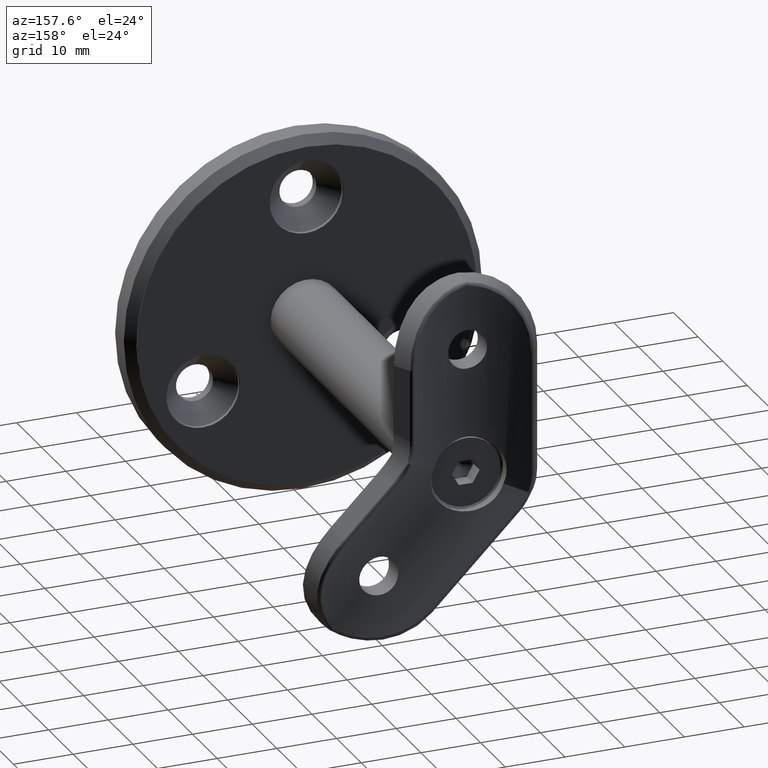
[diagram: clean part render]
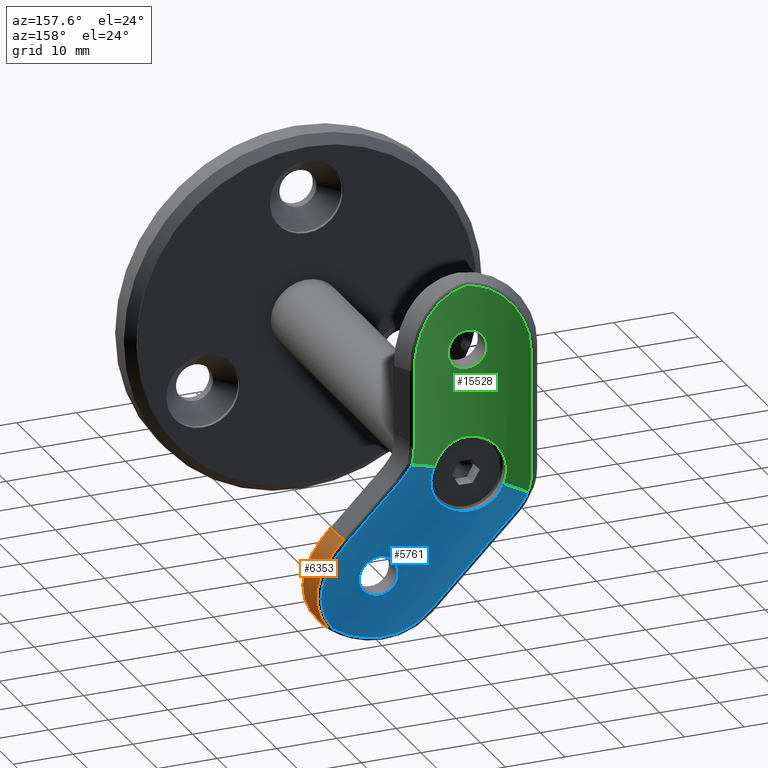
[diagram: same view with three faces highlighted in distinct colors, each labeled with its STEP entity id]
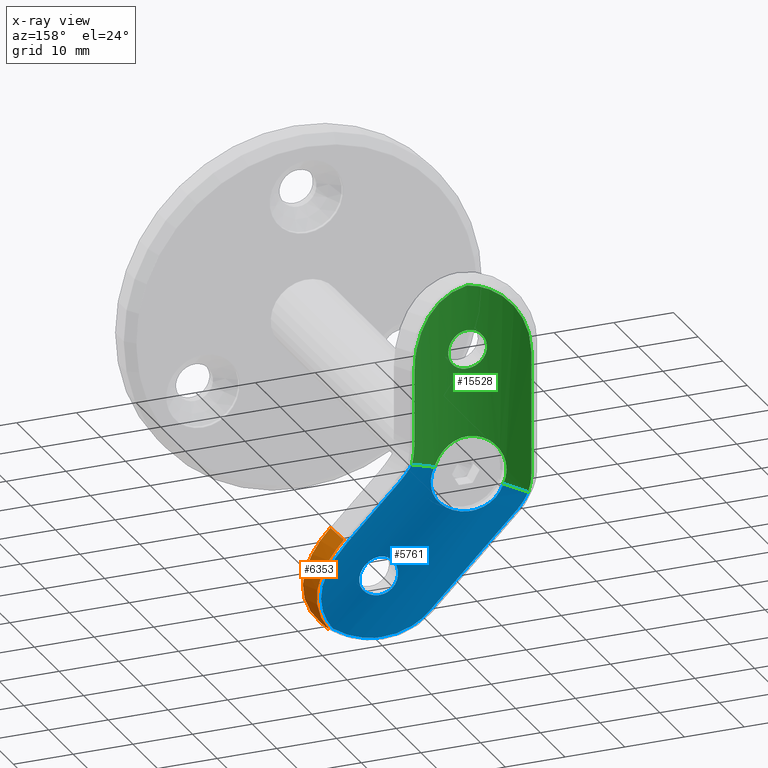
[diagram: x-ray of the same camera — body ghosted, the three highlighted faces saturated]
A machine part, auxiliary view with three faces highlighted in distinct colors.
The next image is the same camera in x-ray (body ghosted, the three faces saturated) — at least one of them is partly hidden behind the body in this view.
Their STEP definitions:

[orange] entity #6353 — the highlighted cylindrical surface (partial cylindrical patch) has radius 12.5 mm, axis along (-0.3408, 0.8762, -0.3408).
#30 = CARTESIAN_POINT ( 'NONE',  ( 25.09486194422481731, 3.829536654084760183, -50.69056533372738471 ) ) ;
#485 = CARTESIAN_POINT ( 'NONE',  ( 22.85995427555764792, 3.239857663348319594, -55.35995427555757686 ) ) ;
#508 = CARTESIAN_POINT ( 'NONE',  ( 22.97389649005910428, 0.000000000000000000, -55.47389649005846479 ) ) ;
#598 = CARTESIAN_POINT ( 'NONE',  ( 22.95907800634946128, 1.086248427539301842, -55.45907800634937956 ) ) ;
#780 = CARTESIAN_POINT ( 'NONE',  ( 26.50594904755439174, 1.657067174833760870, -46.36792620457121927 ) ) ;
#899 = CARTESIAN_POINT ( 'NONE',  ( 26.17724337866761886, 0.7727347606470177377, -49.91864311445584690 ) ) ;
#1014 = CARTESIAN_POINT ( 'NONE',  ( 26.51729039762703977, 1.354734121282358927, -47.55154579727117437 ) ) ;
#1075 = CARTESIAN_POINT ( 'NONE',  ( 25.06191581270713797, 2.772549371437260213, -41.41259842139377412 ) ) ;
#1180 = CARTESIAN_POINT ( 'NONE',  ( 24.65467737069021226, 2.883240075711233530, -40.70556919678595875 ) ) ;
#1188 =( BOUNDED_CURVE ( )  B_SPLINE_CURVE ( 3, ( #9832, #12576, #598, #13928 ),
 .UNSPECIFIED., .F., .F. ) 
 B_SPLINE_CURVE_WITH_KNOTS ( ( 4, 4 ),
 ( 4.546722041699394978, 4.672378306030700479 ),
 .UNSPECIFIED. ) 
 CURVE ( )  GEOMETRIC_REPRESENTATION_ITEM ( )  RATIONAL_B_SPLINE_CURVE ( ( 1.000000000000000000, 0.9986846413726616634, 0.9986846413726616634, 1.000000000000000000 ) ) 
 REPRESENTATION_ITEM ( '' )  );
#1220 = EDGE_CURVE ( 'NONE', #16129, #12977, #6103, .T. ) ;
#1231 = ORIENTED_EDGE ( 'NONE', *, *, #4704, .F. ) ;
#1254 = CARTESIAN_POINT ( 'NONE',  ( 23.08519466650909280, 3.245011956817368315, -55.05670122337029682 ) ) ;
#1359 = CARTESIAN_POINT ( 'NONE',  ( 21.53497582384456166, 5.891269701761542521, -39.24929542361731905 ) ) ;
#1878 = ORIENTED_EDGE ( 'NONE', *, *, #10627, .T. ) ;
#2124 = CARTESIAN_POINT ( 'NONE',  ( 25.75217982287015772, 2.498387212870738505, -42.87194164982474831 ) ) ;
#2297 = CARTESIAN_POINT ( 'NONE',  ( 26.45414280449287503, 1.155296670455962627, -48.34280370787171677 ) ) ;
#2552 = CARTESIAN_POINT ( 'NONE',  ( 24.68024390047141026, 3.561780843767484495, -52.10650183082781695 ) ) ;
#2665 = CARTESIAN_POINT ( 'NONE',  ( 22.55251481618520160, 5.859623051412968131, -40.35179781299714108 ) ) ;
#2936 = CARTESIAN_POINT ( 'NONE',  ( 21.36655189416701717, 6.324327223410780796, -39.41771935329487064 ) ) ;
#3809 = CARTESIAN_POINT ( 'NONE',  ( 22.62741699796952943, 3.082346597307952685, -38.15685424949234772 ) ) ;
#3999 = CARTESIAN_POINT ( 'NONE',  ( 25.40880727662291250, 4.302519365372576843, -48.51922036940604244 ) ) ;
#4704 = EDGE_CURVE ( 'NONE', #9566, #16129, #1188, .T. ) ;
#4885 = CARTESIAN_POINT ( 'NONE',  ( 24.71358077722469204, 0.1571745190103231160, -53.22294044888833042 ) ) ;
#5201 = CARTESIAN_POINT ( 'NONE',  ( 24.46671449885531402, 5.419476174832440485, -43.52928591069603215 ) ) ;
#5555 = CARTESIAN_POINT ( 'NONE',  ( 12.88815710307014051, 2.186773601728808636, -47.89611414439176684 ) ) ;
#6103 = B_SPLINE_CURVE_WITH_KNOTS ( 'NONE', 3,
 ( #10129, #8841, #16929, #4885, #6174, #10310, #12879, #15700, #899, #6245, #2297, #1014, #13115, #780, #7416, #8787, #11659, #14199, #2124, #6118, #1075, #1180, #17162, #10539, #14551, #9137 ),
 .UNSPECIFIED., .F., .F.,
 ( 4, 2, 2, 2, 2, 2, 2, 2, 2, 2, 2, 2, 4 ),
 ( 0.0005688773810516190455, 0.003010928116034440258, 0.004231953483525842732, 0.005452978851017244340, 0.007895029586000048422, 0.009116054953491450896, 0.01033708032098285337, 0.01155810568847425585, 0.01277913105596565832, 0.01522118179094844245, 0.01644220715843983452, 0.01766323252593123005, 0.02010528326091401766 ),
 .UNSPECIFIED. ) ;
#6118 = CARTESIAN_POINT ( 'NONE',  ( 25.24875972774889732, 2.708889678496917863, -41.77445834412346670 ) ) ;
#6174 = CARTESIAN_POINT ( 'NONE',  ( 24.92371239837708075, 0.2056162798510913770, -52.87319827669247019 ) ) ;
#6245 = CARTESIAN_POINT ( 'NONE',  ( 26.40057153796531253, 1.056214804828599974, -48.74165679547638774 ) ) ;
#6347 = CYLINDRICAL_SURFACE ( 'NONE', #16167, 12.50000000000000000 ) ;
#6353 = ADVANCED_FACE ( 'NONE', ( #14188 ), #6347, .T. ) ;
#6556 = CARTESIAN_POINT ( 'NONE',  ( 23.97310928773378080, 5.591199235090768660, -42.52879944546571522 ) ) ;
#6671 = CARTESIAN_POINT ( 'NONE',  ( 24.39948030342026186, 3.453701825731732455, -52.78824431901975345 ) ) ;
#7069 = EDGE_LOOP ( 'NONE', ( #1231, #1878, #9190, #16017 ) ) ;
#7247 = LINE ( 'NONE', #2936, #7473 ) ;
#7416 = CARTESIAN_POINT ( 'NONE',  ( 26.47432876240413435, 1.757544853865977919, -45.97395818069644235 ) ) ;
#7473 = VECTOR ( 'NONE', #14997, 1000.000000000000000 ) ;
#8282 = DIRECTION ( 'NONE',  ( -0.3407743523790588425, 0.8762109800277928517, -0.3407743523790600082 ) ) ;
#8475 = VERTEX_POINT ( 'NONE', #10148 ) ;
#8787 = CARTESIAN_POINT ( 'NONE',  ( 26.36935057021619500, 1.955212908482938605, -45.18616430775212933 ) ) ;
#8841 = CARTESIAN_POINT ( 'NONE',  ( 23.53283675017916110, 1.630820767780308511E-14, -54.87431948561840045 ) ) ;
#9137 = CARTESIAN_POINT ( 'NONE',  ( 22.62741699796952943, 3.082346597307952685, -38.15685424949234772 ) ) ;
#9152 = CARTESIAN_POINT ( 'NONE',  ( 23.69894276427611501, 3.305031091946478039, -54.10812467887892296 ) ) ;
#9190 = ORIENTED_EDGE ( 'NONE', *, *, #9423, .F. ) ;
#9318 = CARTESIAN_POINT ( 'NONE',  ( 24.73283432687778571, 5.282982228987853190, -44.21226799256048423 ) ) ;
#9378 = CARTESIAN_POINT ( 'NONE',  ( 23.20404351182848757, 5.768863407296731083, -41.25463881250120579 ) ) ;
#9423 = EDGE_CURVE ( 'NONE', #12977, #8475, #7247, .T. ) ;
#9566 = VERTEX_POINT ( 'NONE', #485 ) ;
#9832 = CARTESIAN_POINT ( 'NONE',  ( 22.85995427555764792, 3.239857663348319594, -55.35995427555757686 ) ) ;
#10129 = CARTESIAN_POINT ( 'NONE',  ( 22.97389649005910428, 0.000000000000000000, -55.47389649005846479 ) ) ;
#10148 = CARTESIAN_POINT ( 'NONE',  ( 21.53497582384456166, 5.891269701761542521, -39.24929542361731905 ) ) ;
#10310 = CARTESIAN_POINT ( 'NONE',  ( 25.31017352260574427, 0.3201654217414497405, -52.15368895898736668 ) ) ;
#10501 = CARTESIAN_POINT ( 'NONE',  ( 23.88620580962197693, 3.336613239468481318, -53.78105016932438076 ) ) ;
#10539 = CARTESIAN_POINT ( 'NONE',  ( 23.73561518604749665, 3.043008909993827338, -39.36509144365295043 ) ) ;
#10627 = EDGE_CURVE ( 'NONE', #9566, #8475, #11326, .T. ) ;
#10674 = CARTESIAN_POINT ( 'NONE',  ( 23.79298933987927001, 5.642708180042154353, -42.20027336552885089 ) ) ;
#11326 = B_SPLINE_CURVE_WITH_KNOTS ( 'NONE', 3,
 ( #14622, #1254, #17287, #9152, #10501, #6671, #2552, #13417, #30, #17347, #12035, #3999, #14682, #11907, #13309, #13187, #14513, #9318, #5201, #6556, #10674, #15959, #9378, #2665, #14737, #1359 ),
 .UNSPECIFIED., .F., .F.,
 ( 4, 2, 2, 2, 2, 2, 2, 2, 2, 2, 2, 2, 4 ),
 ( 0.000000000000000000, 0.001131280647928916382, 0.002262561295857832763, 0.004525122591715660322, 0.005656403239644574969, 0.006787683887573488749, 0.009050245183431317175, 0.01018152583136023095, 0.01131280647928914647, 0.01357536777514699658, 0.01470664842307591903, 0.01583792907100483802, 0.01810049036686266904 ),
 .UNSPECIFIED. ) ;
#11659 = CARTESIAN_POINT ( 'NONE',  ( 26.29538982045511730, 2.052867408294370311, -44.79033935422351220 ) ) ;
#11907 = CARTESIAN_POINT ( 'NONE',  ( 25.31124180751763930, 4.727958833548798978, -46.70340723046177089 ) ) ;
#12035 = CARTESIAN_POINT ( 'NONE',  ( 25.29700037082685427, 4.059373703102719944, -49.60507700119428875 ) ) ;
#12065 = DIRECTION ( 'NONE',  ( 0.000000000000000000, 0.3624699488056325469, 0.9319954593305923574 ) ) ;
#12576 = CARTESIAN_POINT ( 'NONE',  ( 22.92104724409115235, 2.167623377859031031, -55.42104724409107774 ) ) ;
#12879 = CARTESIAN_POINT ( 'NONE',  ( 25.48386516152052650, 0.3854294742830490228, -51.78896855021830703 ) ) ;
#12977 = VERTEX_POINT ( 'NONE', #3809 ) ;
#13115 = CARTESIAN_POINT ( 'NONE',  ( 26.52743005424770928, 1.455664509521956695, -47.15672068917738358 ) ) ;
#13187 = CARTESIAN_POINT ( 'NONE',  ( 25.12203797791766391, 4.976966832350729675, -45.61806643672645123 ) ) ;
#13309 = CARTESIAN_POINT ( 'NONE',  ( 25.25930575337488193, 4.813007432885995307, -46.33740375536386580 ) ) ;
#13417 = CARTESIAN_POINT ( 'NONE',  ( 25.00328374084046246, 3.758067035653761323, -51.05000259737660429 ) ) ;
#13928 = CARTESIAN_POINT ( 'NONE',  ( 22.97389649005910428, 0.000000000000000000, -55.47389649005846479 ) ) ;
#14188 = FACE_OUTER_BOUND ( 'NONE', #7069, .T. ) ;
#14199 = CARTESIAN_POINT ( 'NONE',  ( 26.01540014971746473, 2.331179716261351231, -43.62465814163713418 ) ) ;
#14513 = CARTESIAN_POINT ( 'NONE',  ( 25.03672424690339327, 5.056225827733842770, -45.26327587685807430 ) ) ;
#14551 = CARTESIAN_POINT ( 'NONE',  ( 23.21100170568501042, 3.082346597307951797, -38.74043895720780739 ) ) ;
#14622 = CARTESIAN_POINT ( 'NONE',  ( 22.85995427555764792, 3.239857663348319594, -55.35995427555757686 ) ) ;
#14682 = CARTESIAN_POINT ( 'NONE',  ( 25.41231490471443877, 4.473214841419892451, -47.79460400511066354 ) ) ;
#14737 = CARTESIAN_POINT ( 'NONE',  ( 22.06905887025714819, 5.891269701761554067, -39.78337847002988070 ) ) ;
#14997 = DIRECTION ( 'NONE',  ( -0.3407743523790588425, 0.8762109800277928517, -0.3407743523790600637 ) ) ;
#15700 = CARTESIAN_POINT ( 'NONE',  ( 25.94643830890749214, 0.6015425689992240921, -50.67918309684046818 ) ) ;
#15959 = CARTESIAN_POINT ( 'NONE',  ( 23.40885003309741919, 5.731391831041618978, -41.56402329140298946 ) ) ;
#16017 = ORIENTED_EDGE ( 'NONE', *, *, #1220, .F. ) ;
#16129 = VERTEX_POINT ( 'NONE', #508 ) ;
#16167 = AXIS2_PLACEMENT_3D ( 'NONE', #5555, #8282, #12065 ) ;
#16929 = CARTESIAN_POINT ( 'NONE',  ( 24.04024861154570303, 0.04036384305550357737, -54.23870055188016437 ) ) ;
#17162 = CARTESIAN_POINT ( 'NONE',  ( 24.43584400599828754, 2.929946608142873998, -40.36278814692768435 ) ) ;
#17287 = CARTESIAN_POINT ( 'NONE',  ( 23.29837055336812313, 3.259269567933756662, -54.74591473918010109 ) ) ;
#17347 = CARTESIAN_POINT ( 'NONE',  ( 25.24188508764391514, 3.980476590670391168, -49.96684832462882753 ) ) ;

[blue] entity #5761 — the highlighted cylindrical surface (partial cylindrical patch) has radius 21.2 mm, axis along (0.7071, 0, -0.7071).
#5 = CARTESIAN_POINT ( 'NONE',  ( -0.8040290927925920483, 4.287228381606931649, -38.71148293425204656 ) ) ;
#112 = VERTEX_POINT ( 'NONE', #3056 ) ;
#116 = CARTESIAN_POINT ( 'NONE',  ( 7.222286768906364784, 6.093847186285944240, -53.56198447855555145 ) ) ;
#117 = CARTESIAN_POINT ( 'NONE',  ( 0.8243789608701517224, 4.041864765456387509, -38.70867959498870192 ) ) ;
#138 = CARTESIAN_POINT ( 'NONE',  ( 24.74783753284262389, 4.414754567657363182, -49.51867663328677338 ) ) ;
#243 = B_SPLINE_CURVE_WITH_KNOTS ( 'NONE', 3,
 ( #1260, #9325, #2736, #10730, #10614, #1425 ),
 .UNSPECIFIED., .F., .F.,
 ( 4, 2, 4 ),
 ( 0.000000000000000000, 0.001891494291695717134, 0.003782988583391434269 ),
 .UNSPECIFIED. ) ;
#244 = CARTESIAN_POINT ( 'NONE',  ( -3.807194173684915750, 4.629478672639733894, -37.47383184532733935 ) ) ;
#319 = CARTESIAN_POINT ( 'NONE',  ( 7.222286768906364784, 6.093847186285944240, -53.56198447855555145 ) ) ;
#337 = CARTESIAN_POINT ( 'NONE',  ( 11.62019226977976771, 3.792174747996109652, -46.92412872504863230 ) ) ;
#375 = CARTESIAN_POINT ( 'NONE',  ( 24.51773916086501615, 5.256657551960804753, -45.73757567191573514 ) ) ;
#420 = CARTESIAN_POINT ( 'NONE',  ( 11.76401462920714636, 3.748289039735876127, -46.30556648916730467 ) ) ;
#437 = CARTESIAN_POINT ( 'NONE',  ( 18.05095313225392673, 4.205537550929127733, -57.07281222658615150 ) ) ;
#589 = CARTESIAN_POINT ( 'NONE',  ( 22.71511966720014541, 3.699999999999995293, -54.71464351258385506 ) ) ;
#590 = VECTOR ( 'NONE', #12875, 999.9999999999998863 ) ;
#643 = CARTESIAN_POINT ( 'NONE',  ( 15.68972704376974470, 3.887967157473172897, -44.20253404032740008 ) ) ;
#717 = EDGE_CURVE ( 'NONE', #6303, #2752, #1954, .T. ) ;
#935 = CARTESIAN_POINT ( 'NONE',  ( 17.43645928386893473, 3.703344133980571939, -49.32764277092425687 ) ) ;
#988 = CARTESIAN_POINT ( 'NONE',  ( 15.05973031998187928, 3.841155524434436863, -44.09916883816953259 ) ) ;
#1104 = CARTESIAN_POINT ( 'NONE',  ( -7.798240508542134464, 6.093847186285943351, -38.54145720110709306 ) ) ;
#1260 = CARTESIAN_POINT ( 'NONE',  ( 10.33610911518423769, 6.390411988404356869, -28.21864342232250422 ) ) ;
#1317 = EDGE_CURVE ( 'NONE', #4132, #16500, #11602, .T. ) ;
#1425 = CARTESIAN_POINT ( 'NONE',  ( 12.54842607316900960, 6.093847186285944240, -31.20872836351976432 ) ) ;
#1449 = CARTESIAN_POINT ( 'NONE',  ( -2.189562399117034097, 4.477724045675295805, -38.35746042307122394 ) ) ;
#1503 = CARTESIAN_POINT ( 'NONE',  ( -6.998988146072697702, 4.848208313589778662, -35.39907581299183903 ) ) ;
#1558 = CARTESIAN_POINT ( 'NONE',  ( -9.330593266185312373, 5.863718080963989721, -36.36485827584103703 ) ) ;
#1559 = CARTESIAN_POINT ( 'NONE',  ( -0.4006849130214494292, 4.226146189800476627, -38.75039392883762446 ) ) ;
#1582 = CARTESIAN_POINT ( 'NONE',  ( 8.265793712769973212, 6.064980849821343334, -54.52783440110263768 ) ) ;
#1760 = CARTESIAN_POINT ( 'NONE',  ( 15.29894799193098720, 4.793945828319392533, -57.32780226052045691 ) ) ;
#1818 = CARTESIAN_POINT ( 'NONE',  ( 13.91759604267834227, 5.106223784688193490, -57.15895255271059483 ) ) ;
#1848 = LINE ( 'NONE', #12931, #590 ) ;
#1954 = LINE ( 'NONE', #6973, #14545 ) ;
#1981 = CARTESIAN_POINT ( 'NONE',  ( 17.99511644260275389, 3.888139371989946635, -46.50619880546398832 ) ) ;
#2083 = VERTEX_POINT ( 'NONE', #6497 ) ;
#2275 = CARTESIAN_POINT ( 'NONE',  ( 17.93268064341698675, 3.902183266299698250, -46.30025700303988145 ) ) ;
#2397 = CARTESIAN_POINT ( 'NONE',  ( 17.76920334588909611, 3.925497616736911333, -45.90640151029555938 ) ) ;
#2454 = CARTESIAN_POINT ( 'NONE',  ( 12.26355866195861033, 3.703302388574871262, -45.36892795405650958 ) ) ;
#2457 = B_SPLINE_CURVE_WITH_KNOTS ( 'NONE', 3,
 ( #6403, #1104, #17069, #14527, #11749, #10340 ),
 .UNSPECIFIED., .F., .F.,
 ( 4, 2, 4 ),
 ( 8.673617379884035472E-19, 0.001602261014506133931, 0.003204522029012266994 ),
 .UNSPECIFIED. ) ;
#2632 = CARTESIAN_POINT ( 'NONE',  ( 3.807687233094557033, 3.714688137805806534, -37.46047189656719212 ) ) ;
#2686 = B_SPLINE_CURVE_WITH_KNOTS ( 'NONE', 3,
 ( #4462, #16468, #5784, #8442, #4348, #9842, #9788, #9897, #11198, #3185, #12540, #12589, #13772, #16358, #13940, #10963, #4295, #15022, #337, #6299, #420, #13911, #3731, #2454, #3270, #3329, #12677, #4606, #11699, #11642, #14082, #3671, #7579, #988, #4656, #643, #13148, #15798, #6222, #9984, #14411, #11754, #14479, #10287, #2397, #2275, #1981, #6289, #15613, #16969, #8935, #5038, #14358, #13044, #6345, #935, #7763, #15740, #11339, #7640, #3617, #7697, #9054, #17012, #10350, #8999 ),
 .UNSPECIFIED., .T., .F.,
 ( 4, 2, 2, 2, 2, 2, 2, 2, 2, 2, 2, 2, 2, 2, 2, 2, 2, 2, 2, 2, 2, 2, 2, 2, 2, 2, 2, 2, 2, 2, 2, 2, 4 ),
 ( 0.000000000000000000, 0.0006359496383762837119, 0.001271899276752567424, 0.001907848915128851353, 0.002543798553505134848, 0.003179748191881418776, 0.003815697830257702705, 0.004451647468633986200, 0.005087597107010269695, 0.005723546745386554058, 0.006359496383762837553, 0.006995446022139121048, 0.007631395660515405410, 0.008267345298891689773, 0.008903294937267972400, 0.009539244575644256763, 0.01017519421402053939, 0.01081114385239682375, 0.01144709349077311158, 0.01208304312914939942, 0.01271899276752568898, 0.01335494240590197682, 0.01399089204427826465, 0.01462684168265455248, 0.01526279132103084031, 0.01589874095940713161, 0.01653469059778341771, 0.01717064023615970728, 0.01780658987453599684, 0.01844253951291228294, 0.01907848915128857251, 0.01971443878966485860, 0.02035038842804114817 ),
 .UNSPECIFIED. ) ;
#2704 = VERTEX_POINT ( 'NONE', #13119 ) ;
#2710 = EDGE_LOOP ( 'NONE', ( #16853 ) ) ;
#2736 = CARTESIAN_POINT ( 'NONE',  ( 10.95924752387625034, 6.215526222167242487, -29.29300169563142475 ) ) ;
#2752 = VERTEX_POINT ( 'NONE', #17036 ) ;
#2754 = CARTESIAN_POINT ( 'NONE',  ( -5.425668231051954393, 4.581222497772843738, -35.62936473855923936 ) ) ;
#2803 = CARTESIAN_POINT ( 'NONE',  ( 1.620614507266126436, 3.929830576406621034, -38.54986872611241466 ) ) ;
#3046 = CARTESIAN_POINT ( 'NONE',  ( 13.23757567191581508, 5.256657551960800312, -57.01773916086494864 ) ) ;
#3056 = CARTESIAN_POINT ( 'NONE',  ( -5.774247078195771543, 4.501517931964945873, -34.89177145228125454 ) ) ;
#3109 = CARTESIAN_POINT ( 'NONE',  ( 22.50364108339789837, 3.699999999999994849, -55.00364108339782376 ) ) ;
#3113 = CARTESIAN_POINT ( 'NONE',  ( 14.26405116497241998, 5.028120977312438455, -57.21409046205739912 ) ) ;
#3185 = CARTESIAN_POINT ( 'NONE',  ( 12.40092741681431221, 3.950595286180581311, -49.49710890511121164 ) ) ;
#3239 = EDGE_CURVE ( 'NONE', #2083, #2083, #2686, .T. ) ;
#3270 = CARTESIAN_POINT ( 'NONE',  ( 12.39807906700160345, 3.700016057299584382, -45.20435979410950011 ) ) ;
#3329 = CARTESIAN_POINT ( 'NONE',  ( 12.70198118726117009, 3.699984060093046701, -44.90016249882241794 ) ) ;
#3617 = CARTESIAN_POINT ( 'NONE',  ( 16.29084023559404315, 3.724899180116069353, -50.26970915807993379 ) ) ;
#3671 = CARTESIAN_POINT ( 'NONE',  ( 14.42161894836792158, 3.791984623966222490, -44.12050686979099368 ) ) ;
#3731 = CARTESIAN_POINT ( 'NONE',  ( 12.02829967444160708, 3.715774398257990718, -45.72145622293106015 ) ) ;
#3794 = CARTESIAN_POINT ( 'NONE',  ( -9.330593266185312373, 5.863718080963989721, -36.36485827584103703 ) ) ;
#3840 = EDGE_LOOP ( 'NONE', ( #4344, #6097, #6012, #6915, #9192, #5610, #10497, #13177, #13553 ) ) ;
#3974 = CARTESIAN_POINT ( 'NONE',  ( 4.279659032191591272, 3.699915750241540291, -37.05957988014863247 ) ) ;
#4086 = CARTESIAN_POINT ( 'NONE',  ( -1.997315966038049062, 4.453431962328519234, -38.42580642919730849 ) ) ;
#4132 = VERTEX_POINT ( 'NONE', #10256 ) ;
#4134 = DIRECTION ( 'NONE',  ( -0.7071067811865487940, -0.000000000000000000, 0.7071067811865463515 ) ) ;
#4137 = CARTESIAN_POINT ( 'NONE',  ( 2.767233735450767895, 3.794444968568428056, -38.10775284137032060 ) ) ;
#4212 = CARTESIAN_POINT ( 'NONE',  ( 21.56795895101578608, 6.093847186285946016, -40.22826124136652481 ) ) ;
#4243 = EDGE_CURVE ( 'NONE', #17054, #6303, #13614, .T. ) ;
#4277 = CARTESIAN_POINT ( 'NONE',  ( 22.21464351258394032, 3.699999999999994849, -55.21511966720007791 ) ) ;
#4295 = CARTESIAN_POINT ( 'NONE',  ( 11.59935387515587024, 3.841385652077696999, -47.56271275785864816 ) ) ;
#4311 = CARTESIAN_POINT ( 'NONE',  ( 6.053835706855233312, 3.931687920923567781, -34.10665402708576011 ) ) ;
#4344 = ORIENTED_EDGE ( 'NONE', *, *, #1317, .F. ) ;
#4348 = CARTESIAN_POINT ( 'NONE',  ( 13.80279254057117555, 3.902016723424795330, -50.43352699296649178 ) ) ;
#4394 = CARTESIAN_POINT ( 'NONE',  ( 21.30983918436733049, 3.743408895132686709, -55.78962378624847673 ) ) ;
#4396 = VERTEX_POINT ( 'NONE', #11759 ) ;
#4446 = CARTESIAN_POINT ( 'NONE',  ( 23.46403216468851838, 3.769139576995511831, -53.49815170039696000 ) ) ;
#4462 = CARTESIAN_POINT ( 'NONE',  ( 14.84924240491752201, 3.824925860154134938, -50.59924240491744740 ) ) ;
#4561 = EDGE_CURVE ( 'NONE', #4132, #4396, #243, .T. ) ;
#4606 = CARTESIAN_POINT ( 'NONE',  ( 13.21877645121740308, 3.715654459580702618, -44.52984069332684669 ) ) ;
#4656 = CARTESIAN_POINT ( 'NONE',  ( 15.27036180860383219, 3.857419302218916712, -44.11956031409701495 ) ) ;
#5038 = CARTESIAN_POINT ( 'NONE',  ( 17.99662282860120044, 3.762281250992999038, -48.18665808562575847 ) ) ;
#5271 = CARTESIAN_POINT ( 'NONE',  ( 4.976673911886276613, 3.712427453104133690, -36.30304182432176674 ) ) ;
#5443 = CARTESIAN_POINT ( 'NONE',  ( 2.009775421958743813, 3.878746696356500934, -38.43233446546727095 ) ) ;
#5515 = CARTESIAN_POINT ( 'NONE',  ( 23.38905149157586294, 5.819749552387368574, -42.82009249149347596 ) ) ;
#5517 = CARTESIAN_POINT ( 'NONE',  ( 12.90228429535935639, 5.329385472025397696, -56.93157754640812840 ) ) ;
#5575 = CARTESIAN_POINT ( 'NONE',  ( 5.774247078195538840, 4.501517931964890806, -30.10822854771818413 ) ) ;
#5610 = ORIENTED_EDGE ( 'NONE', *, *, #717, .T. ) ;
#5650 = CARTESIAN_POINT ( 'NONE',  ( 22.65029887098357619, 5.982072194795745368, -41.61843169439666923 ) ) ;
#5709 = CARTESIAN_POINT ( 'NONE',  ( 22.50364108339789837, 3.699999999999994849, -55.00364108339782376 ) ) ;
#5761 = ADVANCED_FACE ( 'NONE', ( #11498, #9199 ), #15661, .F. ) ;
#5784 = CARTESIAN_POINT ( 'NONE',  ( 14.42404217164729907, 3.857722012334527495, -50.57824336256231845 ) ) ;
#5927 = CARTESIAN_POINT ( 'NONE',  ( 23.94046170487517955, 3.868273186953528064, -52.55185037029284700 ) ) ;
#6012 = ORIENTED_EDGE ( 'NONE', *, *, #9214, .T. ) ;
#6097 = ORIENTED_EDGE ( 'NONE', *, *, #4561, .T. ) ;
#6128 = AXIS2_PLACEMENT_3D ( 'NONE', #13052, #8774, #9007 ) ;
#6222 = CARTESIAN_POINT ( 'NONE',  ( 16.47490431729925220, 3.934562963901696353, -44.52692854016374469 ) ) ;
#6272 = EDGE_CURVE ( 'NONE', #112, #12797, #9976, .T. ) ;
#6289 = CARTESIAN_POINT ( 'NONE',  ( 18.07785437038880616, 3.857945154435807655, -46.92109436045492288 ) ) ;
#6299 = CARTESIAN_POINT ( 'NONE',  ( 11.70283294122280182, 3.762017856352318113, -46.50805639527568047 ) ) ;
#6303 = VERTEX_POINT ( 'NONE', #116 ) ;
#6345 = CARTESIAN_POINT ( 'NONE',  ( 17.67228550109981455, 3.715925892555989041, -48.97349203599155487 ) ) ;
#6403 = CARTESIAN_POINT ( 'NONE',  ( -7.415700987168388991, 6.093847186285944240, -38.92399672248084386 ) ) ;
#6497 = CARTESIAN_POINT ( 'NONE',  ( 14.84924240491752556, 3.824925860154135382, -50.59924240491746872 ) ) ;
#6638 = CARTESIAN_POINT ( 'NONE',  ( 5.626339297291481856, 3.794240757755388049, -35.25202673370611706 ) ) ;
#6806 = CARTESIAN_POINT ( 'NONE',  ( 4.717645487973285867, 3.700174012279354052, -36.62035453704001497 ) ) ;
#6891 = CARTESIAN_POINT ( 'NONE',  ( 7.365057919748051241, 4.951832559453297478, -29.44929312197697868 ) ) ;
#6915 = ORIENTED_EDGE ( 'NONE', *, *, #11587, .T. ) ;
#6927 = CARTESIAN_POINT ( 'NONE',  ( 6.240855089304303327, 4.106345707746786644, -32.89457176154181184 ) ) ;
#6944 = CARTESIAN_POINT ( 'NONE',  ( 24.43157754640817103, 5.329385472025400361, -45.40228429535927290 ) ) ;
#6973 = CARTESIAN_POINT ( 'NONE',  ( -6.919848854824606654, 6.093847186285944240, -39.41984885482462175 ) ) ;
#7033 = CARTESIAN_POINT ( 'NONE',  ( 6.048466457651486827, 4.405103865553747333, -30.87329612486538366 ) ) ;
#7120 = CARTESIAN_POINT ( 'NONE',  ( 10.32009249149353813, 5.819749552387364133, -55.88905149157584162 ) ) ;
#7501 = B_SPLINE_CURVE_WITH_KNOTS ( 'NONE', 3,
 ( #10696, #9405, #2754, #16259, #8227, #13382, #244, #16202, #12125, #1449, #4086, #12003, #9564, #5, #1559, #13497, #117, #2803, #5443, #12191, #4137, #16028, #13557, #2632, #14876, #3974, #6806, #5271, #14705, #6638, #13737, #4311, #16483, #9859, #6927, #12429, #10979, #13846, #12371, #16435, #7033, #8400, #11103 ),
 .UNSPECIFIED., .F., .F.,
 ( 4, 2, 2, 2, 2, 2, 2, 2, 2, 2, 2, 1, 2, 2, 2, 2, 2, 2, 2, 2, 2, 4 ),
 ( 0.002511164385278420903, 0.003739671199313066886, 0.004968178013347712002, 0.006196684827382357985, 0.007425191641417003968, 0.008039445048434326960, 0.008653698455451649951, 0.009882205269486299404, 0.01111071208352094886, 0.01233921889755559484, 0.01295347230457292304, 0.01356772571159025123, 0.01418197911860757596, 0.01479623252562490415, 0.01602473933965957442, 0.01725324615369424469, 0.01848175296772891149, 0.01909600637474625703, 0.01971025978176360258, 0.02032451318878094812, 0.02093876659579829366, 0.02216727340983295352 ),
 .UNSPECIFIED. ) ;
#7579 = CARTESIAN_POINT ( 'NONE',  ( 14.63648879923695745, 3.808521499482568018, -44.09931636653877973 ) ) ;
#7640 = CARTESIAN_POINT ( 'NONE',  ( 16.47946264086123236, 3.715647907319792775, -50.16895804411289106 ) ) ;
#7697 = CARTESIAN_POINT ( 'NONE',  ( 15.89973646156803078, 3.747854894242752088, -50.43206458575767925 ) ) ;
#7763 = CARTESIAN_POINT ( 'NONE',  ( 17.29920730025863662, 3.700027581384691011, -49.49521714826938279 ) ) ;
#8133 = CARTESIAN_POINT ( 'NONE',  ( 24.83650293106297369, 4.637154773724293300, -48.48686096636183152 ) ) ;
#8227 = CARTESIAN_POINT ( 'NONE',  ( -4.704350629458740940, 4.642370826735149336, -36.63515846686679822 ) ) ;
#8245 = CARTESIAN_POINT ( 'NONE',  ( 10.33610911518423769, 6.390411988404356869, -28.21864342232250422 ) ) ;
#8299 = CARTESIAN_POINT ( 'NONE',  ( 20.99815170039705237, 3.769139576995511831, -55.96403216468847575 ) ) ;
#8362 = CARTESIAN_POINT ( 'NONE',  ( 22.84647840004851815, 5.947833482031422037, -41.91042967590681911 ) ) ;
#8400 = CARTESIAN_POINT ( 'NONE',  ( 5.930157239874509045, 4.457384069820971462, -30.48462897455534559 ) ) ;
#8442 = CARTESIAN_POINT ( 'NONE',  ( 14.00908749789480545, 3.887937639407396340, -50.49588858061789409 ) ) ;
#8472 = CARTESIAN_POINT ( 'NONE',  ( 22.91494963745224211, 3.708858511788828416, -54.41831215061075255 ) ) ;
#8522 = CARTESIAN_POINT ( 'NONE',  ( 24.49095214028573153, 4.140613181024564327, -50.89419758496152468 ) ) ;
#8774 = DIRECTION ( 'NONE',  ( 0.7071067811865486830, 0.000000000000000000, -0.7071067811865463515 ) ) ;
#8935 = CARTESIAN_POINT ( 'NONE',  ( 18.07863234198712021, 3.792391132379452134, -47.77150913109544206 ) ) ;
#8999 = CARTESIAN_POINT ( 'NONE',  ( 14.84924240491752201, 3.824925860154134938, -50.59924240491744740 ) ) ;
#9007 = DIRECTION ( 'NONE',  ( -0.7071067811865463515, 0.000000000000000000, -0.7071067811865486830 ) ) ;
#9054 = CARTESIAN_POINT ( 'NONE',  ( 15.69452304138054366, 3.761729156074272939, -50.49465776251084037 ) ) ;
#9192 = ORIENTED_EDGE ( 'NONE', *, *, #4243, .T. ) ;
#9199 = FACE_BOUND ( 'NONE', #2710, .T. ) ;
#9214 = EDGE_CURVE ( 'NONE', #4396, #2704, #1848, .T. ) ;
#9325 = CARTESIAN_POINT ( 'NONE',  ( 10.62811294596894562, 6.288743858499497463, -28.76812488130745393 ) ) ;
#9337 = CARTESIAN_POINT ( 'NONE',  ( 22.50364108339789837, 3.699999999999994849, -55.00364108339782376 ) ) ;
#9360 = CARTESIAN_POINT ( 'NONE',  ( 8.892606937752216112, 5.584332674018944509, -28.81656160152994772 ) ) ;
#9405 = CARTESIAN_POINT ( 'NONE',  ( -5.617672566701700454, 4.545839853198926583, -35.26977576145227289 ) ) ;
#9481 = CARTESIAN_POINT ( 'NONE',  ( 24.70124700571205878, 4.342756397016172443, -49.86260482520650328 ) ) ;
#9564 = CARTESIAN_POINT ( 'NONE',  ( -1.404592559791120854, 4.373364571669451806, -38.59354088335508948 ) ) ;
#9588 = CARTESIAN_POINT ( 'NONE',  ( 24.12855657165961887, 5.537406324634720711, -44.40931077575653774 ) ) ;
#9715 = EDGE_CURVE ( 'NONE', #112, #16500, #7501, .T. ) ;
#9788 = CARTESIAN_POINT ( 'NONE',  ( 13.22241589090893932, 3.934605647874927392, -50.17078909737657000 ) ) ;
#9824 = CARTESIAN_POINT ( 'NONE',  ( 10.01057632911958351, 5.866789837656186890, -55.71551701809013935 ) ) ;
#9842 = CARTESIAN_POINT ( 'NONE',  ( 13.40919533498233207, 3.925348465649043828, -50.27056627861556137 ) ) ;
#9859 = CARTESIAN_POINT ( 'NONE',  ( 6.201939835862616768, 4.046348922261124414, -33.29993836827718923 ) ) ;
#9897 = CARTESIAN_POINT ( 'NONE',  ( 12.86873902120866653, 3.947263912678343978, -49.93483645494271883 ) ) ;
#9976 =( BOUNDED_CURVE ( )  B_SPLINE_CURVE ( 3, ( #14875, #1503, #12252, #1558 ),
 .UNSPECIFIED., .F., .F. ) 
 B_SPLINE_CURVE_WITH_KNOTS ( ( 4, 4 ),
 ( 1.846651777901944902, 2.026531223200644050 ),
 .UNSPECIFIED. ) 
 CURVE ( )  GEOMETRIC_REPRESENTATION_ITEM ( )  RATIONAL_B_SPLINE_CURVE ( ( 1.000000000000000000, 0.9973054325623265104, 0.9973054325623265104, 1.000000000000000000 ) ) 
 REPRESENTATION_ITEM ( '' )  );
#9984 = CARTESIAN_POINT ( 'NONE',  ( 16.83070469363141086, 3.947299234091514730, -44.76427830401502916 ) ) ;
#10256 = CARTESIAN_POINT ( 'NONE',  ( 10.33610911518423769, 6.390411988404356869, -28.21864342232250422 ) ) ;
#10287 = CARTESIAN_POINT ( 'NONE',  ( 17.66918452977051857, 3.934730564632941796, -45.71963795802874841 ) ) ;
#10340 = CARTESIAN_POINT ( 'NONE',  ( -9.330593266185312373, 5.863718080963989721, -36.36485827584103703 ) ) ;
#10350 = CARTESIAN_POINT ( 'NONE',  ( 15.06361840775562477, 3.808396333268471601, -50.59924240491745451 ) ) ;
#10497 = ORIENTED_EDGE ( 'NONE', *, *, #15399, .T. ) ;
#10540 = CARTESIAN_POINT ( 'NONE',  ( 21.06198447855557632, 6.093847186285944240, -39.72228676890630084 ) ) ;
#10614 = CARTESIAN_POINT ( 'NONE',  ( 12.10263810051388589, 6.093847186285945128, -30.76294039086465304 ) ) ;
#10696 = CARTESIAN_POINT ( 'NONE',  ( -5.774247078195771543, 4.501517931964945873, -34.89177145228125454 ) ) ;
#10730 = CARTESIAN_POINT ( 'NONE',  ( 11.69635959882760723, 6.118126042775467788, -30.29009975352176909 ) ) ;
#10781 = B_SPLINE_CURVE_WITH_KNOTS ( 'NONE', 3,
 ( #10540, #4212, #15002, #5650, #8362, #13636, #5515, #14949, #9588, #6944, #375, #12452, #14834, #16165, #8133, #138, #9481, #16681, #8522, #14027, #5927, #4446, #12631, #8472, #589, #3109 ),
 .UNSPECIFIED., .F., .F.,
 ( 4, 2, 2, 2, 2, 2, 2, 2, 2, 2, 2, 2, 4 ),
 ( 0.000000000000000000, 0.002117766241124188851, 0.003176649361686283059, 0.004235532482248377702, 0.006353298723372584333, 0.007412181843934684614, 0.008471064964496786628, 0.01058883120562096984, 0.01164771432618305277, 0.01270659744674513224, 0.01482436368786929116, 0.01588324680843136022, 0.01694212992899343448 ),
 .UNSPECIFIED. ) ;
#10963 = CARTESIAN_POINT ( 'NONE',  ( 11.61995851534968338, 3.857636881133627682, -47.77324648150833752 ) ) ;
#10979 = CARTESIAN_POINT ( 'NONE',  ( 6.249648092661995946, 4.197885639760575494, -32.28685620127036771 ) ) ;
#11065 = CARTESIAN_POINT ( 'NONE',  ( 17.01867663328685865, 4.414754567657366735, -57.24783753284258125 ) ) ;
#11103 = CARTESIAN_POINT ( 'NONE',  ( 5.774247078195538840, 4.501517931964890806, -30.10822854771818413 ) ) ;
#11198 = CARTESIAN_POINT ( 'NONE',  ( 12.70117066750287016, 3.950598047349442421, -49.79737732655590321 ) ) ;
#11339 = CARTESIAN_POINT ( 'NONE',  ( 16.83555605071839523, 3.703131488712292807, -49.93051581238689351 ) ) ;
#11498 = FACE_OUTER_BOUND ( 'NONE', #3840, .T. ) ;
#11587 = EDGE_CURVE ( 'NONE', #2704, #17054, #10781, .T. ) ;
#11602 =( BOUNDED_CURVE ( )  B_SPLINE_CURVE ( 3, ( #8245, #9360, #6891, #5575 ),
 .UNSPECIFIED., .F., .T. ) 
 B_SPLINE_CURVE_WITH_KNOTS ( ( 4, 4 ),
 ( 1.061512235145361416, 1.294940875687848658 ),
 .UNSPECIFIED. ) 
 CURVE ( )  GEOMETRIC_REPRESENTATION_ITEM ( )  RATIONAL_B_SPLINE_CURVE ( ( 1.000000000000000000, 0.9954644080639820647, 0.9954644080639820647, 1.000000000000000000 ) ) 
 REPRESENTATION_ITEM ( '' )  );
#11642 = CARTESIAN_POINT ( 'NONE',  ( 13.80262579204830686, 3.748099187276201061, -44.26501943244301174 ) ) ;
#11699 = CARTESIAN_POINT ( 'NONE',  ( 13.40916859081586487, 3.724972152022434368, -44.42793703090883639 ) ) ;
#11749 = CARTESIAN_POINT ( 'NONE',  ( -9.076064930258421981, 5.938938609568308102, -36.83641884958870349 ) ) ;
#11754 = CARTESIAN_POINT ( 'NONE',  ( 17.29526419636860624, 3.950630466399291496, -45.19876200578269732 ) ) ;
#11759 = CARTESIAN_POINT ( 'NONE',  ( 12.54842607316900960, 6.093847186285944240, -31.20872836351976432 ) ) ;
#12003 = CARTESIAN_POINT ( 'NONE',  ( -1.605047732209695655, 4.401288713406901643, -38.54386256311601500 ) ) ;
#12125 = CARTESIAN_POINT ( 'NONE',  ( -2.754921149320379570, 4.544257958095376360, -38.12485678848083381 ) ) ;
#12191 = CARTESIAN_POINT ( 'NONE',  ( 2.580042332521755633, 3.813963172331316986, -38.19633249789862361 ) ) ;
#12252 = CARTESIAN_POINT ( 'NONE',  ( -8.187639777383079576, 5.303501849058069872, -35.89143143961752003 ) ) ;
#12273 = CARTESIAN_POINT ( 'NONE',  ( 19.40181529588800302, 3.963798741509643619, -56.69866290220676319 ) ) ;
#12330 = CARTESIAN_POINT ( 'NONE',  ( 21.91831215061081295, 3.708858511788826195, -55.41494963745216751 ) ) ;
#12371 = CARTESIAN_POINT ( 'NONE',  ( 6.199210229291916008, 4.288905879895591688, -31.67918848143979460 ) ) ;
#12396 = CARTESIAN_POINT ( 'NONE',  ( 11.90931077575661057, 5.537406324634716270, -56.62855657165957268 ) ) ;
#12429 = CARTESIAN_POINT ( 'NONE',  ( 6.250333992076118506, 4.136822122965947202, -32.69198059419747437 ) ) ;
#12452 = CARTESIAN_POINT ( 'NONE',  ( 24.65895255271063391, 5.106223784688195266, -46.41759604267826234 ) ) ;
#12453 = CARTESIAN_POINT ( 'NONE',  ( 15.98686096636188836, 4.637154773724295076, -57.33650293106290974 ) ) ;
#12515 = CARTESIAN_POINT ( 'NONE',  ( 20.05185037029291450, 3.868273186953528064, -56.44046170487511205 ) ) ;
#12540 = CARTESIAN_POINT ( 'NONE',  ( 12.26622097774492204, 3.947365487097493020, -49.33325216581784645 ) ) ;
#12589 = CARTESIAN_POINT ( 'NONE',  ( 12.02837556667288332, 3.934678065432045457, -48.97743302811624488 ) ) ;
#12631 = CARTESIAN_POINT ( 'NONE',  ( 23.28962378624854068, 3.743408895132688929, -53.80983918436724878 ) ) ;
#12677 = CARTESIAN_POINT ( 'NONE',  ( 12.86632347102833762, 3.703235756393350453, -44.76554781400329830 ) ) ;
#12797 = VERTEX_POINT ( 'NONE', #3794 ) ;
#12875 = DIRECTION ( 'NONE',  ( 0.7071067811865487940, 0.000000000000000000, -0.7071067811865463515 ) ) ;
#12931 = CARTESIAN_POINT ( 'NONE',  ( 6.919848854824597773, 6.093847186285944240, -25.58015114517537469 ) ) ;
#13044 = CARTESIAN_POINT ( 'NONE',  ( 17.77185625513028810, 3.725113787952802014, -48.78663636716439100 ) ) ;
#13052 = CARTESIAN_POINT ( 'NONE',  ( -7.328686268959218194E-15, 24.90000000000000568, -32.50000000000000000 ) ) ;
#13119 = CARTESIAN_POINT ( 'NONE',  ( 21.06198447855557632, 6.093847186285944240, -39.72228676890630084 ) ) ;
#13148 = CARTESIAN_POINT ( 'NONE',  ( 15.89420297113491465, 3.901911946222410776, -44.26454817403472219 ) ) ;
#13177 = ORIENTED_EDGE ( 'NONE', *, *, #6272, .F. ) ;
#13382 = CARTESIAN_POINT ( 'NONE',  ( -4.124101126197767364, 4.642073946156733300, -37.21404712448690333 ) ) ;
#13403 = CARTESIAN_POINT ( 'NONE',  ( 5.774247078195538840, 4.501517931964890806, -30.10822854771818413 ) ) ;
#13497 = CARTESIAN_POINT ( 'NONE',  ( 0.4128813292491804177, 4.103533638656643667, -38.74960012105820084 ) ) ;
#13553 = ORIENTED_EDGE ( 'NONE', *, *, #9715, .T. ) ;
#13557 = CARTESIAN_POINT ( 'NONE',  ( 3.478926407214555816, 3.732281175625807190, -37.70427613203264627 ) ) ;
#13614 = B_SPLINE_CURVE_WITH_KNOTS ( 'NONE', 3,
 ( #5709, #4277, #12330, #4394, #8299, #12515, #12273, #15120, #437, #15065, #11065, #12453, #1760, #3113, #1818, #3046, #5517, #12396, #13870, #7120, #9824, #13639, #14951, #1582, #16399, #319 ),
 .UNSPECIFIED., .F., .F.,
 ( 4, 2, 2, 2, 2, 2, 2, 2, 2, 2, 2, 2, 4 ),
 ( 0.000000000000000000, 0.001072477748337491649, 0.002144955496674983298, 0.004289910993349976137, 0.005362388741687477110, 0.006434866490024978951, 0.008579821986699978295, 0.009652299735037480136, 0.01072477748337498371, 0.01286973298004999954, 0.01394221072838751005, 0.01501468847672502056, 0.01715964397340004333 ),
 .UNSPECIFIED. ) ;
#13636 = CARTESIAN_POINT ( 'NONE',  ( 23.21551701809016066, 5.866789837656188666, -42.51057632911953021 ) ) ;
#13639 = CARTESIAN_POINT ( 'NONE',  ( 9.410429675906888392, 5.947833482031422925, -55.34647840004851105 ) ) ;
#13737 = CARTESIAN_POINT ( 'NONE',  ( 5.936666601454446024, 3.880466596727238038, -34.49633030695193270 ) ) ;
#13772 = CARTESIAN_POINT ( 'NONE',  ( 11.92749417742276563, 3.925285313727265191, -48.78823858577214168 ) ) ;
#13846 = CARTESIAN_POINT ( 'NONE',  ( 6.239483297328225930, 4.228474280611375313, -32.08432320449568920 ) ) ;
#13870 = CARTESIAN_POINT ( 'NONE',  ( 11.26440647052365662, 5.662540360462021916, -56.36752940758148611 ) ) ;
#13911 = CARTESIAN_POINT ( 'NONE',  ( 11.92666500221784887, 3.725106163866866105, -45.91173373699196247 ) ) ;
#13940 = CARTESIAN_POINT ( 'NONE',  ( 11.70314451340989237, 3.888120067555296711, -48.19192974518036010 ) ) ;
#14027 = CARTESIAN_POINT ( 'NONE',  ( 24.19866290220681648, 3.963798741509645396, -51.90181529588792841 ) ) ;
#14082 = CARTESIAN_POINT ( 'NONE',  ( 14.00511578536075596, 3.761813044902167835, -44.20360332413665816 ) ) ;
#14358 = CARTESIAN_POINT ( 'NONE',  ( 17.93431601646330975, 3.748264639024910583, -48.39331803987082736 ) ) ;
#14411 = CARTESIAN_POINT ( 'NONE',  ( 16.99465876003948495, 3.950562328728968176, -44.89877771133554774 ) ) ;
#14479 = CARTESIAN_POINT ( 'NONE',  ( 17.43290086112342507, 3.947328330019645115, -45.36621612609118159 ) ) ;
#14527 = CARTESIAN_POINT ( 'NONE',  ( -8.787759147430890039, 5.996382399183638690, -37.28430378854785943 ) ) ;
#14545 = VECTOR ( 'NONE', #4134, 999.9999999999998863 ) ;
#14705 = CARTESIAN_POINT ( 'NONE',  ( 5.430615662965177393, 3.759183982706709948, -35.62070887202688141 ) ) ;
#14834 = CARTESIAN_POINT ( 'NONE',  ( 24.71409046205745597, 5.028120977312440232, -46.76405116497233649 ) ) ;
#14875 = CARTESIAN_POINT ( 'NONE',  ( -5.774247078195771543, 4.501517931964945873, -34.89177145228125454 ) ) ;
#14876 = CARTESIAN_POINT ( 'NONE',  ( 4.125433058466467351, 3.702898728699393516, -37.19952822970734729 ) ) ;
#14949 = CARTESIAN_POINT ( 'NONE',  ( 23.86752940758150743, 5.662540360462024580, -43.76440647052357491 ) ) ;
#14951 = CARTESIAN_POINT ( 'NONE',  ( 9.118431694396749165, 5.982072194795738262, -55.15029887098355488 ) ) ;
#15002 = CARTESIAN_POINT ( 'NONE',  ( 22.02783440110266255, 6.064980849821350439, -40.76579371276989860 ) ) ;
#15022 = CARTESIAN_POINT ( 'NONE',  ( 11.59913182798344877, 3.808728826814313795, -47.13917983052017746 ) ) ;
#15065 = CARTESIAN_POINT ( 'NONE',  ( 17.36260482520658499, 4.342756397016168890, -57.20124700571202681 ) ) ;
#15120 = CARTESIAN_POINT ( 'NONE',  ( 18.39419758496158153, 4.140613181024560774, -56.99095214028564982 ) ) ;
#15399 = EDGE_CURVE ( 'NONE', #2752, #12797, #2457, .T. ) ;
#15613 = CARTESIAN_POINT ( 'NONE',  ( 18.09908030657369338, 3.841616025851119165, -47.13278477760829333 ) ) ;
#15661 = CYLINDRICAL_SURFACE ( 'NONE', #6128, 21.20000000000000284 ) ;
#15740 = CARTESIAN_POINT ( 'NONE',  ( 16.99934161350534367, 3.699972772146610467, -49.79558845172648773 ) ) ;
#15798 = CARTESIAN_POINT ( 'NONE',  ( 16.28538790516343226, 3.925133455940026828, -44.42609903089113033 ) ) ;
#16028 = CARTESIAN_POINT ( 'NONE',  ( 3.128545835136363973, 3.760795596394104656, -37.91448755044873309 ) ) ;
#16165 = CARTESIAN_POINT ( 'NONE',  ( 24.82780226052049244, 4.793945828319394309, -47.79894799193090904 ) ) ;
#16202 = CARTESIAN_POINT ( 'NONE',  ( -3.118221153302865201, 4.580277818558234237, -37.93235009372806132 ) ) ;
#16259 = CARTESIAN_POINT ( 'NONE',  ( -4.970062470711480884, 4.629650164323590111, -36.31172906403507739 ) ) ;
#16358 = CARTESIAN_POINT ( 'NONE',  ( 11.76549873177448546, 3.902096562147256975, -48.39702466843088757 ) ) ;
#16399 = CARTESIAN_POINT ( 'NONE',  ( 7.728261241366570111, 6.093847186285945128, -54.06795895101574700 ) ) ;
#16435 = CARTESIAN_POINT ( 'NONE',  ( 6.168855283997330297, 4.318905614058319742, -31.47548670980973640 ) ) ;
#16468 = CARTESIAN_POINT ( 'NONE',  ( 14.63486640207941569, 3.841455387039797831, -50.59924240491744740 ) ) ;
#16483 = CARTESIAN_POINT ( 'NONE',  ( 6.172264102547520892, 4.016677705683195043, -33.50379122853801306 ) ) ;
#16500 = VERTEX_POINT ( 'NONE', #13403 ) ;
#16681 = CARTESIAN_POINT ( 'NONE',  ( 24.57281222658623321, 4.205537550929133950, -50.55095313225387343 ) ) ;
#16853 = ORIENTED_EDGE ( 'NONE', *, *, #3239, .F. ) ;
#16969 = CARTESIAN_POINT ( 'NONE',  ( 18.09940265986213959, 3.808613151402262975, -47.56080470930943704 ) ) ;
#17012 = CARTESIAN_POINT ( 'NONE',  ( 15.27552117473478965, 3.792082325090214479, -50.57823970076128006 ) ) ;
#17036 = CARTESIAN_POINT ( 'NONE',  ( -7.415700987168388991, 6.093847186285944240, -38.92399672248084386 ) ) ;
#17054 = VERTEX_POINT ( 'NONE', #9337 ) ;
#17069 = CARTESIAN_POINT ( 'NONE',  ( -8.148861451529487709, 6.073834569678457918, -38.13683401566725450 ) ) ;

[green] entity #15528 — the highlighted cylindrical surface (partial cylindrical patch) has radius 21.2 mm, axis along (0, 0, 1).
#34 = CARTESIAN_POINT ( 'NONE',  ( 0.8474655071052321631, 3.715903916353783920, -14.64486106012266653 ) ) ;
#90 = CARTESIAN_POINT ( 'NONE',  ( 0.000000000000000000, 3.699999999999993960, -14.75000000000000178 ) ) ;
#112 = VERTEX_POINT ( 'NONE', #3056 ) ;
#286 = CARTESIAN_POINT ( 'NONE',  ( -8.911753692921339010, 5.662540360462021027, -7.657969904380908410 ) ) ;
#310 = CARTESIAN_POINT ( 'NONE',  ( 9.241149532007185030, 5.819749552387369462, -8.664035701577956772 ) ) ;
#360 = VERTEX_POINT ( 'NONE', #10305 ) ;
#484 = CARTESIAN_POINT ( 'NONE',  ( 4.311056489299678773, 4.140613181024565215, -2.175619817077269591 ) ) ;
#560 = DIRECTION ( 'NONE',  ( 0.000000000000000000, 0.000000000000000000, -1.000000000000000000 ) ) ;
#612 = CARTESIAN_POINT ( 'NONE',  ( 1.633350755781656449, 3.759183982706736593, -26.45330043318032054 ) ) ;
#640 = EDGE_CURVE ( 'NONE', #7310, #1192, #7825, .T. ) ;
#729 = CARTESIAN_POINT ( 'NONE',  ( -6.049321826086853093, 4.581222497772933444, -34.12373177120284851 ) ) ;
#735 = CARTESIAN_POINT ( 'NONE',  ( -0.7047291253302958580, 3.708858511788827084, -0.7980965669489488157 ) ) ;
#765 = ORIENTED_EDGE ( 'NONE', *, *, #15507, .T. ) ;
#784 = CARTESIAN_POINT ( 'NONE',  ( -5.930821589689826645, 4.545839853199040270, -34.51376714311026461 ) ) ;
#849 = CARTESIAN_POINT ( 'NONE',  ( 4.963904981983320752, 4.288905879895608564, -28.69689779971669452 ) ) ;
#1079 = CARTESIAN_POINT ( 'NONE',  ( 5.774247078195538840, 4.501517931964890806, -30.10822854771818413 ) ) ;
#1147 = CARTESIAN_POINT ( 'NONE',  ( -1.441976982013437825, 3.748179998212294528, -8.579639057679866454 ) ) ;
#1192 = VERTEX_POINT ( 'NONE', #2227 ) ;
#1196 = CARTESIAN_POINT ( 'NONE',  ( -1.048768862925171907, 3.725041419713670088, -8.416513414615828026 ) ) ;
#1308 = CARTESIAN_POINT ( 'NONE',  ( -1.442239263721959874, 3.748196862764300974, -14.42024035302756069 ) ) ;
#1317 = EDGE_CURVE ( 'NONE', #4132, #16500, #11602, .T. ) ;
#1332 = CARTESIAN_POINT ( 'NONE',  ( 9.786144100064893436, 6.093847186285944240, -24.53998976095313012 ) ) ;
#1365 = CARTESIAN_POINT ( 'NONE',  ( 1.631629457461085231, 3.762128828798769753, -14.31887391139546217 ) ) ;
#1423 = CARTESIAN_POINT ( 'NONE',  ( 2.150385480687886819, 3.808806223564109583, -13.94603853267266125 ) ) ;
#1503 = CARTESIAN_POINT ( 'NONE',  ( -6.998988146072697702, 4.848208313589778662, -35.39907581299183903 ) ) ;
#1558 = CARTESIAN_POINT ( 'NONE',  ( -9.330593266185312373, 5.863718080963989721, -36.36485827584103703 ) ) ;
#1785 = CARTESIAN_POINT ( 'NONE',  ( -9.786144100064902318, 6.093847186285945128, -11.78444403883220559 ) ) ;
#1843 = CARTESIAN_POINT ( 'NONE',  ( -8.152441440104919224, 5.329385472025397696, -6.100973123804539711 ) ) ;
#1943 = ORIENTED_EDGE ( 'NONE', *, *, #6272, .T. ) ;
#1952 = CARTESIAN_POINT ( 'NONE',  ( 5.086479698382300185, 4.318905614058337505, -28.86240089143636922 ) ) ;
#2003 = ORIENTED_EDGE ( 'NONE', *, *, #1317, .T. ) ;
#2012 = CARTESIAN_POINT ( 'NONE',  ( 9.786144100064896989, 6.093847186285944240, -57.31928916848294620 ) ) ;
#2075 = CARTESIAN_POINT ( 'NONE',  ( -4.311056489299684102, 4.140613181024559886, -2.175619817077275364 ) ) ;
#2127 = CARTESIAN_POINT ( 'NONE',  ( 0.4223484817466877095, 3.700174012279363822, -26.25059025018625292 ) ) ;
#2181 = CARTESIAN_POINT ( 'NONE',  ( -6.209664345186046042, 4.629650164323637185, -33.31906540673469408 ) ) ;
#2227 = CARTESIAN_POINT ( 'NONE',  ( 9.786144100064896989, 6.093847186285944240, -12.49999999999999645 ) ) ;
#2314 = VECTOR ( 'NONE', #4378, 1000.000000000000000 ) ;
#2441 = CARTESIAN_POINT ( 'NONE',  ( -1.983721702801612752, 3.792276730629057901, -8.916958134304234562 ) ) ;
#2524 = CARTESIAN_POINT ( 'NONE',  ( 10.01714863103247133, 6.215579758270947330, -27.01882888877920053 ) ) ;
#2556 = CARTESIAN_POINT ( 'NONE',  ( -3.250120148735856418, 3.950615306561060525, -11.28955024339623314 ) ) ;
#2615 = CARTESIAN_POINT ( 'NONE',  ( 0.8423241288772205237, 3.715697776005913333, -8.353755050355470502 ) ) ;
#2642 = CARTESIAN_POINT ( 'NONE',  ( 0.3538900827512846958, 3.699999999999993960, -0.7298597784690734613 ) ) ;
#2839 = VERTEX_POINT ( 'NONE', #13357 ) ;
#2934 = CARTESIAN_POINT ( 'NONE',  ( 3.391883470746495099, 3.963798741509648949, -1.669806203150969504 ) ) ;
#2958 = CARTESIAN_POINT ( 'NONE',  ( 3.229269677274344108, 3.947349722291171314, -11.92341250480405179 ) ) ;
#2966 = CARTESIAN_POINT ( 'NONE',  ( -7.389293650634745525, 5.028120977312434903, -4.938291737477564780 ) ) ;
#3056 = CARTESIAN_POINT ( 'NONE',  ( -5.774247078195771543, 4.501517931964945873, -34.89177145228125454 ) ) ;
#3103 = CARTESIAN_POINT ( 'NONE',  ( 5.189203650537060675, 4.342756397016172443, -2.756365127531301695 ) ) ;
#3361 = CARTESIAN_POINT ( 'NONE',  ( -2.773668099268942644, 3.878746696356427659, -26.88408024167208410 ) ) ;
#3363 = LINE ( 'NONE', #12439, #2314 ) ;
#3413 = CARTESIAN_POINT ( 'NONE',  ( 4.569883971800547506, 4.197885639760593257, -28.23154687909883265 ) ) ;
#3443 = B_SPLINE_CURVE_WITH_KNOTS ( 'NONE', 3,
 ( #12051, #3959, #12184, #9333, #5434, #4014 ),
 .UNSPECIFIED., .F., .F.,
 ( 4, 2, 4 ),
 ( 7.035795484650485942E-17, 0.001602261014506134148, 0.003204522029012198039 ),
 .UNSPECIFIED. ) ;
#3464 = CARTESIAN_POINT ( 'NONE',  ( 2.786238513998427813, 3.880466596727271344, -26.89052409093404350 ) ) ;
#3523 = CARTESIAN_POINT ( 'NONE',  ( -6.209123043818946641, 4.629478672639685044, -31.67506259119297241 ) ) ;
#3784 = CARTESIAN_POINT ( 'NONE',  ( -2.448021508383575018, 3.841276147427546306, -13.64813597836817394 ) ) ;
#3794 = CARTESIAN_POINT ( 'NONE',  ( -9.330593266185312373, 5.863718080963989721, -36.36485827584103703 ) ) ;
#3837 = CARTESIAN_POINT ( 'NONE',  ( -3.229158249383773605, 3.947331311357137995, -11.92522057988708895 ) ) ;
#3949 = CARTESIAN_POINT ( 'NONE',  ( -0.2135048230366504152, 3.700012587018068899, -8.250082106093037382 ) ) ;
#3959 = CARTESIAN_POINT ( 'NONE',  ( -9.484058233284480721, 5.938938609568303661, -35.85143588406576498 ) ) ;
#3985 = CARTESIAN_POINT ( 'NONE',  ( 0.7047291253302884195, 3.708858511788830192, -0.7980965669489462622 ) ) ;
#4014 = CARTESIAN_POINT ( 'NONE',  ( -9.786144100064900542, 6.093847186285944240, -33.20124081049219456 ) ) ;
#4066 = CARTESIAN_POINT ( 'NONE',  ( 2.586182703388971937, 3.857999613231342995, -13.47972158452783908 ) ) ;
#4132 = VERTEX_POINT ( 'NONE', #10256 ) ;
#4241 = CARTESIAN_POINT ( 'NONE',  ( -7.595286027386112693, 5.106223784688188161, -5.222260893428108730 ) ) ;
#4317 = EDGE_LOOP ( 'NONE', ( #8239 ) ) ;
#4378 = DIRECTION ( 'NONE',  ( -0.000000000000000000, -0.000000000000000000, 1.000000000000000000 ) ) ;
#4437 = CARTESIAN_POINT ( 'NONE',  ( 8.911753692921342562, 5.662540360462027245, -7.657969904380904858 ) ) ;
#4628 = CARTESIAN_POINT ( 'NONE',  ( -5.408596338511972412, 4.401288713406787068, -29.36128393263399516 ) ) ;
#4727 = CARTESIAN_POINT ( 'NONE',  ( 4.283902770464663057, 4.136822122965970294, -27.94459566950903806 ) ) ;
#4772 = FACE_BOUND ( 'NONE', #4317, .T. ) ;
#4841 = CARTESIAN_POINT ( 'NONE',  ( 3.654662217591005291, 4.016677705683226129, -27.42576261321966413 ) ) ;
#5026 = CARTESIAN_POINT ( 'NONE',  ( 2.583132212986961385, 3.857624671021101292, -9.516347728072986456 ) ) ;
#5085 = CARTESIAN_POINT ( 'NONE',  ( -0.8422358293998252199, 3.715715769217270648, -14.64612005203395384 ) ) ;
#5139 = CARTESIAN_POINT ( 'NONE',  ( -2.584791864171172016, 3.857830648604963830, -9.518560610930720145 ) ) ;
#5165 = CARTESIAN_POINT ( 'NONE',  ( 9.833262948892022237, 6.118153279198621952, -25.79258016334721759 ) ) ;
#5206 = CARTESIAN_POINT ( 'NONE',  ( -0.8461986512866614962, 3.715867334446160797, -8.354896093574652127 ) ) ;
#5263 = CARTESIAN_POINT ( 'NONE',  ( -7.328686268959218194E-15, 24.90000000000000568, -57.31928916848294620 ) ) ;
#5273 = AXIS2_PLACEMENT_3D ( 'NONE', #5263, #14866, #14695 ) ;
#5390 = CARTESIAN_POINT ( 'NONE',  ( 9.786144100064893436, 6.093847186285943351, -25.17078688773104034 ) ) ;
#5421 = CARTESIAN_POINT ( 'NONE',  ( 1.443554947874319039, 3.748298792827390535, -14.41949259422039553 ) ) ;
#5434 = CARTESIAN_POINT ( 'NONE',  ( -9.786144100064900542, 6.093847186285945128, -33.74223338976263875 ) ) ;
#5575 = CARTESIAN_POINT ( 'NONE',  ( 5.774247078195538840, 4.501517931964890806, -30.10822854771818413 ) ) ;
#5629 = VERTEX_POINT ( 'NONE', #16627 ) ;
#5699 = CARTESIAN_POINT ( 'NONE',  ( 6.257641844313185153, 4.637154773724294188, -3.633522557284838861 ) ) ;
#5730 = CARTESIAN_POINT ( 'NONE',  ( -9.500721165193420248, 5.947833482031415819, -9.690921559380859307 ) ) ;
#5756 = CARTESIAN_POINT ( 'NONE',  ( 9.568475042680230302, 5.982072194795745368, -10.03611518753126042 ) ) ;
#6232 = CYLINDRICAL_SURFACE ( 'NONE', #5273, 21.20000000000000284 ) ;
#6272 = EDGE_CURVE ( 'NONE', #112, #12797, #9976, .T. ) ;
#6396 = CARTESIAN_POINT ( 'NONE',  ( 2.918967894088988047, 3.901750911087716212, -10.05515662026936852 ) ) ;
#6453 = CARTESIAN_POINT ( 'NONE',  ( -3.228949414987503985, 3.947299707505720345, -11.07386210225567424 ) ) ;
#6507 = CARTESIAN_POINT ( 'NONE',  ( -0.2150499108967885986, 3.699999999999993072, -14.74999999999999467 ) ) ;
#6571 = ORIENTED_EDGE ( 'NONE', *, *, #13656, .T. ) ;
#6619 = CARTESIAN_POINT ( 'NONE',  ( 1.438401774077971096, 3.747945617049648792, -8.577958357640088849 ) ) ;
#6851 = CARTESIAN_POINT ( 'NONE',  ( 3.249818524630297301, 3.950568513912573021, -11.28246521156387416 ) ) ;
#6891 = CARTESIAN_POINT ( 'NONE',  ( 7.365057919748051241, 4.951832559453297478, -29.44929312197697868 ) ) ;
#6908 = CARTESIAN_POINT ( 'NONE',  ( 1.987048177762577694, 3.792573537354080759, -14.08067904902006973 ) ) ;
#6917 = CARTESIAN_POINT ( 'NONE',  ( -6.257641844313186041, 4.637154773724290635, -3.633522557284843746 ) ) ;
#7114 = CARTESIAN_POINT ( 'NONE',  ( 9.786144100064896989, 6.093847186285944240, -12.49999999999999645 ) ) ;
#7237 = CARTESIAN_POINT ( 'NONE',  ( -5.602493573841536012, 4.453431962328411764, -29.72213775367263011 ) ) ;
#7310 = VERTEX_POINT ( 'NONE', #15951 ) ;
#7362 = CARTESIAN_POINT ( 'NONE',  ( -6.249514561191083395, 4.642073946156710207, -32.08284518407486985 ) ) ;
#7372 = CARTESIAN_POINT ( 'NONE',  ( -2.457481187968134152E-15, 3.699999999999994849, -0.6750455770823809987 ) ) ;
#7420 = CARTESIAN_POINT ( 'NONE',  ( -4.703022951284419051, 4.226146189800358499, -28.36363108694771995 ) ) ;
#7533 = LINE ( 'NONE', #2012, #13461 ) ;
#7620 = B_SPLINE_CURVE_WITH_KNOTS ( 'NONE', 3,
 ( #14566, #6507, #10559, #5085, #15904, #1308, #17292, #17120, #9222, #3784, #7863, #12041, #14518, #16012, #10611, #3837, #13257, #2556, #6453, #11800, #17186, #15963, #9155, #5139, #7921, #17239, #2441, #11914, #1147, #1196, #5206, #17353, #3949, #14627, #9268, #2615, #13363, #6619, #9323, #7984, #10680, #13138, #5026, #14461, #6396, #15783, #7748, #9102, #6851, #14792, #2958, #10842, #8092, #8264, #12174, #4066, #16239, #1423, #6908, #1365, #5421, #8154, #34, #10727, #14965, #90 ),
 .UNSPECIFIED., .T., .F.,
 ( 4, 2, 2, 2, 2, 2, 2, 2, 2, 2, 2, 2, 2, 2, 2, 2, 2, 2, 2, 2, 2, 2, 2, 2, 2, 2, 2, 2, 2, 2, 2, 2, 4 ),
 ( 0.000000000000000000, 0.0006359210278306043698, 0.001271842055661208740, 0.001907763083491813109, 0.002543684111322417479, 0.003179605139153021849, 0.003815526166983626219, 0.004451447194814230589, 0.005087368222644834959, 0.005723289250475439328, 0.006359210278306043698, 0.006995131306136648068, 0.007631052333967252438, 0.008266973361797855940, 0.008902894389628461178, 0.009538815417459066415, 0.01017473644528966992, 0.01081065747312027342, 0.01144657850095087866, 0.01208249952878148389, 0.01271842055661208740, 0.01335434158444269090, 0.01399026261227329614, 0.01462618364010390137, 0.01526210466793450488, 0.01589802569576510838, 0.01653394672359571188, 0.01716986775142631885, 0.01780578877925692236, 0.01844170980708752586, 0.01907763083491813283, 0.01971355186274873633, 0.02034947289057933983 ),
 .UNSPECIFIED. ) ;
#7748 = CARTESIAN_POINT ( 'NONE',  ( 3.145373074388929879, 3.934590536070766031, -10.65500212356447918 ) ) ;
#7825 = B_SPLINE_CURVE_WITH_KNOTS ( 'NONE', 3,
 ( #14888, #2642, #3985, #16037, #9355, #13864, #2934, #484, #12444, #3103, #15171, #5699, #12507, #15055, #10992, #16331, #8294, #11115, #4437, #310, #8356, #13748, #5756, #9759, #12321, #7114 ),
 .UNSPECIFIED., .F., .F.,
 ( 4, 2, 2, 2, 2, 2, 2, 2, 2, 2, 2, 2, 4 ),
 ( 0.000000000000000000, 0.001072477748337499022, 0.002144955496674998043, 0.004289910993349996086, 0.005362388741687495325, 0.006434866490024996298, 0.008579821986699995642, 0.009652299735037497483, 0.01072477748337499759, 0.01286973298005000300, 0.01394221072838750831, 0.01501468847672501189, 0.01715964397340002251 ),
 .UNSPECIFIED. ) ;
#7863 = CARTESIAN_POINT ( 'NONE',  ( -2.582435166560724582, 3.857534035934564454, -13.48473451216730545 ) ) ;
#7921 = CARTESIAN_POINT ( 'NONE',  ( -2.450216287825432548, 3.841518995334099795, -9.354122678544710467 ) ) ;
#7984 = CARTESIAN_POINT ( 'NONE',  ( 1.982543221950620493, 3.792152875658099997, -8.915911032316685692 ) ) ;
#8092 = CARTESIAN_POINT ( 'NONE',  ( 3.084331617472056752, 3.925404474577613545, -12.54627208264580496 ) ) ;
#8154 = CARTESIAN_POINT ( 'NONE',  ( 1.052750469737836925, 3.725250148029933595, -14.58204548047346805 ) ) ;
#8239 = ORIENTED_EDGE ( 'NONE', *, *, #8646, .F. ) ;
#8245 = CARTESIAN_POINT ( 'NONE',  ( 10.33610911518423769, 6.390411988404356869, -28.21864342232250422 ) ) ;
#8264 = CARTESIAN_POINT ( 'NONE',  ( 2.921563470123206496, 3.902113776104790155, -12.93953245448076750 ) ) ;
#8294 = CARTESIAN_POINT ( 'NONE',  ( 8.152441440104919224, 5.329385472025400361, -6.100973123804532605 ) ) ;
#8356 = CARTESIAN_POINT ( 'NONE',  ( 9.337303106337268233, 5.866789837656193107, -9.005604081850785647 ) ) ;
#8497 = CARTESIAN_POINT ( 'NONE',  ( -8.640311563268239681, 5.537406324634716270, -7.017379619140764468 ) ) ;
#8618 = CARTESIAN_POINT ( 'NONE',  ( -0.3538900827512906910, 3.699999999999996181, -0.7298597784690741275 ) ) ;
#8646 = EDGE_CURVE ( 'NONE', #2839, #2839, #7620, .T. ) ;
#8727 = CARTESIAN_POINT ( 'NONE',  ( 0.8298832077353830439, 3.712427453104149233, -26.29180346603710916 ) ) ;
#8792 = CARTESIAN_POINT ( 'NONE',  ( -5.301981003889872035, 4.373364571669331902, -29.18441284377393075 ) ) ;
#8801 = CARTESIAN_POINT ( 'NONE',  ( -1.399919117278920266, 3.743408895132688041, -0.9634172961992514272 ) ) ;
#8843 = CARTESIAN_POINT ( 'NONE',  ( -1.616404888294072695, 3.760795596394066020, -26.45916316114956501 ) ) ;
#8938 = B_SPLINE_CURVE_WITH_KNOTS ( 'NONE', 3,
 ( #1332, #5390, #5165, #2524, #16030, #10754 ),
 .UNSPECIFIED., .F., .F.,
 ( 4, 2, 4 ),
 ( 0.000000000000000000, 0.001865670453216287678, 0.003731340906432575356 ),
 .UNSPECIFIED. ) ;
#9102 = CARTESIAN_POINT ( 'NONE',  ( 3.228460125727635965, 3.947224265413160182, -11.07053707394224240 ) ) ;
#9155 = CARTESIAN_POINT ( 'NONE',  ( -2.819839704047506501, 3.888038072627502562, -9.870351241181708701 ) ) ;
#9222 = CARTESIAN_POINT ( 'NONE',  ( -2.148733871589559641, 3.808636782950792554, -13.94749672852736566 ) ) ;
#9268 = CARTESIAN_POINT ( 'NONE',  ( 0.4221747768703997816, 3.703162049178561066, -8.270427941812270589 ) ) ;
#9323 = CARTESIAN_POINT ( 'NONE',  ( 1.627814602934460897, 3.761837651537342619, -8.678969507736880473 ) ) ;
#9333 = CARTESIAN_POINT ( 'NONE',  ( -9.747958748227452119, 6.073834569678457918, -34.27627163442480906 ) ) ;
#9355 = CARTESIAN_POINT ( 'NONE',  ( 1.743640797895938066, 3.769139576995511831, -1.060488282634938662 ) ) ;
#9360 = CARTESIAN_POINT ( 'NONE',  ( 8.892606937752216112, 5.584332674018944509, -28.81656160152994772 ) ) ;
#9412 = ORIENTED_EDGE ( 'NONE', *, *, #13548, .T. ) ;
#9618 = CARTESIAN_POINT ( 'NONE',  ( -9.731232293685234680, 6.064980849821340669, -11.07917013393725192 ) ) ;
#9757 = ORIENTED_EDGE ( 'NONE', *, *, #15057, .T. ) ;
#9759 = CARTESIAN_POINT ( 'NONE',  ( 9.731232293685240009, 6.064980849821349551, -11.07917013393725192 ) ) ;
#9847 = CARTESIAN_POINT ( 'NONE',  ( -9.568475042680223197, 5.982072194795735598, -10.03611518753125864 ) ) ;
#9953 = CARTESIAN_POINT ( 'NONE',  ( 4.133946585798831563, 4.106345707746812401, -27.80804467769952026 ) ) ;
#9976 =( BOUNDED_CURVE ( )  B_SPLINE_CURVE ( 3, ( #14875, #1503, #12252, #1558 ),
 .UNSPECIFIED., .F., .F. ) 
 B_SPLINE_CURVE_WITH_KNOTS ( ( 4, 4 ),
 ( 1.846651777901944902, 2.026531223200644050 ),
 .UNSPECIFIED. ) 
 CURVE ( )  GEOMETRIC_REPRESENTATION_ITEM ( )  RATIONAL_B_SPLINE_CURVE ( ( 1.000000000000000000, 0.9973054325623265104, 0.9973054325623265104, 1.000000000000000000 ) ) 
 REPRESENTATION_ITEM ( '' )  );
#10016 = CARTESIAN_POINT ( 'NONE',  ( -6.046166911794029986, 4.580277818558150749, -30.86366373368437621 ) ) ;
#10132 = CARTESIAN_POINT ( 'NONE',  ( -1.220006490336709382, 3.732281175625776992, -26.36004860208195311 ) ) ;
#10256 = CARTESIAN_POINT ( 'NONE',  ( 10.33610911518423769, 6.390411988404356869, -28.21864342232250422 ) ) ;
#10305 = CARTESIAN_POINT ( 'NONE',  ( -9.786144100064900542, 6.093847186285944240, -33.20124081049219456 ) ) ;
#10488 = CARTESIAN_POINT ( 'NONE',  ( 5.618336916516578405, 4.457384069820972350, -29.73182812088106530 ) ) ;
#10559 = CARTESIAN_POINT ( 'NONE',  ( -0.4264434180833555632, 3.703268988495232339, -14.72886645516788029 ) ) ;
#10611 = CARTESIAN_POINT ( 'NONE',  ( -3.145545920331509482, 3.934615933909439978, -12.34487656152162316 ) ) ;
#10680 = CARTESIAN_POINT ( 'NONE',  ( 2.146023883358506801, 3.808358818845011484, -9.050110867998096609 ) ) ;
#10727 = CARTESIAN_POINT ( 'NONE',  ( 0.4275380518344761849, 3.703270632450825328, -14.72886359071462969 ) ) ;
#10754 = CARTESIAN_POINT ( 'NONE',  ( 10.33610911518423769, 6.390411988404356869, -28.21864342232250422 ) ) ;
#10822 = CARTESIAN_POINT ( 'NONE',  ( -9.786144100064900542, 6.093847186285944240, -12.49999999999999645 ) ) ;
#10842 = CARTESIAN_POINT ( 'NONE',  ( 3.146879315023292101, 3.934817270407256817, -12.33941132614857672 ) ) ;
#10992 = CARTESIAN_POINT ( 'NONE',  ( 7.595286027386116245, 5.106223784688197043, -5.222260893428102513 ) ) ;
#11115 = CARTESIAN_POINT ( 'NONE',  ( 8.640311563268241457, 5.537406324634724264, -7.017379619140758251 ) ) ;
#11202 = CARTESIAN_POINT ( 'NONE',  ( -7.976280095928892422, 5.256657551960794095, -5.802960855907681292 ) ) ;
#11233 = EDGE_CURVE ( 'NONE', #112, #16500, #13311, .T. ) ;
#11312 = CARTESIAN_POINT ( 'NONE',  ( -4.960716127818568744, 4.287228381606813521, -28.67635271975015243 ) ) ;
#11340 = ORIENTED_EDGE ( 'NONE', *, *, #14054, .T. ) ;
#11368 = CARTESIAN_POINT ( 'NONE',  ( -5.925397804656363121, 4.544257958095289318, -30.47064904797984042 ) ) ;
#11423 = CARTESIAN_POINT ( 'NONE',  ( 3.144632322933779367, 3.931687920923604196, -27.08321576192051694 ) ) ;
#11485 = CARTESIAN_POINT ( 'NONE',  ( 2.032445904961202920, 3.794240757755416915, -26.57560056421868566 ) ) ;
#11552 = CARTESIAN_POINT ( 'NONE',  ( -6.250476824372020346, 4.642370826735167988, -32.90247963796592501 ) ) ;
#11602 =( BOUNDED_CURVE ( )  B_SPLINE_CURVE ( 3, ( #8245, #9360, #6891, #5575 ),
 .UNSPECIFIED., .F., .T. ) 
 B_SPLINE_CURVE_WITH_KNOTS ( ( 4, 4 ),
 ( 1.061512235145361416, 1.294940875687848658 ),
 .UNSPECIFIED. ) 
 CURVE ( )  GEOMETRIC_REPRESENTATION_ITEM ( )  RATIONAL_B_SPLINE_CURVE ( ( 1.000000000000000000, 0.9954644080639820647, 0.9954644080639820647, 1.000000000000000000 ) ) 
 REPRESENTATION_ITEM ( '' )  );
#11800 = CARTESIAN_POINT ( 'NONE',  ( -3.145907283640576590, 3.934670733938490983, -10.65680654937358973 ) ) ;
#11914 = CARTESIAN_POINT ( 'NONE',  ( -1.632114013627158799, 3.762182296721558128, -8.681585388800110437 ) ) ;
#12041 = CARTESIAN_POINT ( 'NONE',  ( -2.820025938915969199, 3.888055802896702051, -13.12960000525239579 ) ) ;
#12051 = CARTESIAN_POINT ( 'NONE',  ( -9.330593266185312373, 5.863718080963989721, -36.36485827584103703 ) ) ;
#12174 = CARTESIAN_POINT ( 'NONE',  ( 2.821907254063745984, 3.888313711138198236, -13.12618509924796584 ) ) ;
#12184 = CARTESIAN_POINT ( 'NONE',  ( -9.596897736721185623, 5.996382399183648459, -35.33087043244372438 ) ) ;
#12252 = CARTESIAN_POINT ( 'NONE',  ( -8.187639777383079576, 5.303501849058069872, -35.89143143961752003 ) ) ;
#12321 = CARTESIAN_POINT ( 'NONE',  ( 9.786144100064891660, 6.093847186285943351, -11.78444403883220204 ) ) ;
#12439 = CARTESIAN_POINT ( 'NONE',  ( -9.786144100064900542, 6.093847186285944240, -57.31928916848294620 ) ) ;
#12444 = CARTESIAN_POINT ( 'NONE',  ( 4.611650791545526040, 4.205537550929132173, -2.360446475059910121 ) ) ;
#12507 = CARTESIAN_POINT ( 'NONE',  ( 6.737917470258029340, 4.793945828319397862, -4.126102789512585467 ) ) ;
#12654 = CARTESIAN_POINT ( 'NONE',  ( -3.391883470746501761, 3.963798741509643619, -1.669806203150973500 ) ) ;
#12759 = CARTESIAN_POINT ( 'NONE',  ( -0.8151418527888667498, 3.714688137805789658, -26.29997522089337991 ) ) ;
#12797 = VERTEX_POINT ( 'NONE', #3794 ) ;
#12827 = CARTESIAN_POINT ( 'NONE',  ( 3.819791869709483478, 4.046348922261153724, -27.54892444081057334 ) ) ;
#13138 = CARTESIAN_POINT ( 'NONE',  ( 2.445886756578096399, 3.841026041220953147, -9.349415604761803777 ) ) ;
#13257 = CARTESIAN_POINT ( 'NONE',  ( -3.249878801187870092, 3.950577864950493456, -11.71414448128089703 ) ) ;
#13311 = B_SPLINE_CURVE_WITH_KNOTS ( 'NONE', 3,
 ( #16527, #784, #729, #2181, #11552, #7362, #3523, #10016, #11368, #15527, #7237, #4628, #8792, #11312, #7420, #16763, #14045, #14266, #3361, #16644, #16820, #8843, #10132, #12759, #14105, #15409, #2127, #8727, #612, #11485, #3464, #11423, #4841, #12827, #9953, #4727, #3413, #16871, #849, #1952, #17166, #10488, #1079 ),
 .UNSPECIFIED., .F., .F.,
 ( 4, 2, 2, 2, 2, 2, 2, 2, 2, 2, 2, 1, 2, 2, 2, 2, 2, 2, 2, 2, 2, 4 ),
 ( 0.002511164385279607454, 0.003739671199314190987, 0.004968178013348774520, 0.006196684827383357186, 0.007425191641417941586, 0.008039445048435234220, 0.008653698455452527721, 0.009882205269487111254, 0.01111071208352169479, 0.01233921889755628179, 0.01295347230457357182, 0.01356772571159086532, 0.01418197911860815535, 0.01479623252562544886, 0.01602473933966002892, 0.01725324615369461245, 0.01848175296772919599, 0.01909600637474648602, 0.01971025978176377952, 0.02032451318878106608, 0.02093876659579835611, 0.02216727340983293271 ),
 .UNSPECIFIED. ) ;
#13354 = ORIENTED_EDGE ( 'NONE', *, *, #640, .T. ) ;
#13357 = CARTESIAN_POINT ( 'NONE',  ( 0.000000000000000000, 3.699999999999994849, -14.75000000000000000 ) ) ;
#13363 = CARTESIAN_POINT ( 'NONE',  ( 1.047135578693866975, 3.724969625457598355, -8.416035975697916172 ) ) ;
#13403 = CARTESIAN_POINT ( 'NONE',  ( 5.774247078195538840, 4.501517931964890806, -30.10822854771818413 ) ) ;
#13461 = VECTOR ( 'NONE', #560, 1000.000000000000000 ) ;
#13548 = EDGE_CURVE ( 'NONE', #16485, #7310, #15558, .T. ) ;
#13656 = EDGE_CURVE ( 'NONE', #1192, #5629, #7533, .T. ) ;
#13671 = CARTESIAN_POINT ( 'NONE',  ( -6.737917470258032893, 4.793945828319386315, -4.126102789512589908 ) ) ;
#13748 = CARTESIAN_POINT ( 'NONE',  ( 9.500721165193418472, 5.947833482031429142, -9.690921559380850425 ) ) ;
#13830 = CARTESIAN_POINT ( 'NONE',  ( -9.786144100064900542, 6.093847186285944240, -12.49999999999999645 ) ) ;
#13864 = CARTESIAN_POINT ( 'NONE',  ( 2.749663444081997365, 3.868273186953528953, -1.392737811573842466 ) ) ;
#14045 = CARTESIAN_POINT ( 'NONE',  ( -3.807275490331705203, 4.041864765456282704, -27.52687660266972358 ) ) ;
#14054 = EDGE_CURVE ( 'NONE', #360, #16485, #3363, .T. ) ;
#14105 = CARTESIAN_POINT ( 'NONE',  ( -0.4059465886304101101, 3.702898728699384634, -26.25981002942349463 ) ) ;
#14266 = CARTESIAN_POINT ( 'NONE',  ( -3.131955693744777225, 3.929830576406534881, -27.07614929070000898 ) ) ;
#14461 = CARTESIAN_POINT ( 'NONE',  ( 2.818946742385627147, 3.887916077195384457, -9.868746607885338307 ) ) ;
#14518 = CARTESIAN_POINT ( 'NONE',  ( -2.920790955711715320, 3.902007454047536683, -12.94092318034652322 ) ) ;
#14566 = CARTESIAN_POINT ( 'NONE',  ( 0.000000000000000000, 3.699999999999993960, -14.75000000000000178 ) ) ;
#14627 = CARTESIAN_POINT ( 'NONE',  ( 0.2109978030792269144, 3.699987487099260175, -8.249918377379986012 ) ) ;
#14695 = DIRECTION ( 'NONE',  ( 1.000000000000000000, 0.000000000000000000, 0.000000000000000000 ) ) ;
#14792 = CARTESIAN_POINT ( 'NONE',  ( 3.250179184896289541, 3.950624465169174648, -11.71207803581957130 ) ) ;
#14866 = DIRECTION ( 'NONE',  ( -0.000000000000000000, -0.000000000000000000, 1.000000000000000000 ) ) ;
#14875 = CARTESIAN_POINT ( 'NONE',  ( -5.774247078195771543, 4.501517931964945873, -34.89177145228125454 ) ) ;
#14888 = CARTESIAN_POINT ( 'NONE',  ( -2.457481187968134152E-15, 3.699999999999994849, -0.6750455770823809987 ) ) ;
#14965 = CARTESIAN_POINT ( 'NONE',  ( 0.2150499108967885986, 3.699999999999995293, -14.75000000000000711 ) ) ;
#15055 = CARTESIAN_POINT ( 'NONE',  ( 7.389293650634744637, 5.028120977312445561, -4.938291737477558563 ) ) ;
#15057 = EDGE_CURVE ( 'NONE', #5629, #4132, #8938, .T. ) ;
#15171 = CARTESIAN_POINT ( 'NONE',  ( 5.465342084957811153, 4.414754567657365847, -2.966614606605884497 ) ) ;
#15200 = CARTESIAN_POINT ( 'NONE',  ( -9.241149532007181477, 5.819749552387361469, -8.664035701577960324 ) ) ;
#15272 = FACE_OUTER_BOUND ( 'NONE', #15895, .T. ) ;
#15317 = CARTESIAN_POINT ( 'NONE',  ( -1.743640797895943839, 3.769139576995511831, -1.060488282634941992 ) ) ;
#15366 = CARTESIAN_POINT ( 'NONE',  ( -5.189203650537061563, 4.342756397016170666, -2.756365127531306136 ) ) ;
#15409 = CARTESIAN_POINT ( 'NONE',  ( -0.1979339297854570967, 3.699915750241537626, -26.24971422455621095 ) ) ;
#15507 = EDGE_CURVE ( 'NONE', #12797, #360, #3443, .T. ) ;
#15527 = CARTESIAN_POINT ( 'NONE',  ( -5.690104405931866616, 4.477724045675196329, -29.90640443456046071 ) ) ;
#15528 = ADVANCED_FACE ( 'NONE', ( #4772, #15272 ), #6232, .F. ) ;
#15558 = B_SPLINE_CURVE_WITH_KNOTS ( 'NONE', 3,
 ( #13830, #1785, #9618, #9847, #5730, #16535, #15200, #286, #8497, #1843, #11202, #4241, #2966, #13671, #6917, #16302, #15366, #16704, #2075, #12654, #16827, #15317, #8801, #735, #8618, #7372 ),
 .UNSPECIFIED., .F., .F.,
 ( 4, 2, 2, 2, 2, 2, 2, 2, 2, 2, 2, 2, 4 ),
 ( 0.000000000000000000, 0.002117766241124173672, 0.003176649361686260942, 0.004235532482248347344, 0.006353298723372527088, 0.007412181843934616959, 0.008471064964496706831, 0.01058883120562088657, 0.01164771432618297818, 0.01270659744674506805, 0.01482436368786924953, 0.01588324680843133940, 0.01694212992899343101 ),
 .UNSPECIFIED. ) ;
#15783 = CARTESIAN_POINT ( 'NONE',  ( 3.082691481000266354, 3.925161464275911172, -10.44882960865418298 ) ) ;
#15895 = EDGE_LOOP ( 'NONE', ( #1943, #765, #11340, #9412, #13354, #6571, #9757, #2003, #16023 ) ) ;
#15904 = CARTESIAN_POINT ( 'NONE',  ( -1.048813183214362788, 3.725042598462897647, -14.58347996912378264 ) ) ;
#15951 = CARTESIAN_POINT ( 'NONE',  ( -2.457481187968134152E-15, 3.699999999999994849, -0.6750455770823809987 ) ) ;
#15963 = CARTESIAN_POINT ( 'NONE',  ( -2.921457232206360555, 3.902098512946934772, -10.06020391523706969 ) ) ;
#16012 = CARTESIAN_POINT ( 'NONE',  ( -3.082978690918153575, 3.925206719536251221, -12.55001038564953930 ) ) ;
#16023 = ORIENTED_EDGE ( 'NONE', *, *, #11233, .F. ) ;
#16030 = CARTESIAN_POINT ( 'NONE',  ( 10.15394039300872819, 6.288685478413957419, -27.62328179405860240 ) ) ;
#16037 = CARTESIAN_POINT ( 'NONE',  ( 1.399919117278911829, 3.743408895132691150, -0.9634172961992482076 ) ) ;
#16239 = CARTESIAN_POINT ( 'NONE',  ( 2.449360428614454133, 3.841432951849289346, -13.64660096655393673 ) ) ;
#16302 = CARTESIAN_POINT ( 'NONE',  ( -5.465342084957811153, 4.414754567657363182, -2.966614606605888937 ) ) ;
#16331 = CARTESIAN_POINT ( 'NONE',  ( 7.976280095928898639, 5.256657551960802088, -5.802960855907674187 ) ) ;
#16485 = VERTEX_POINT ( 'NONE', #10822 ) ;
#16500 = VERTEX_POINT ( 'NONE', #13403 ) ;
#16527 = CARTESIAN_POINT ( 'NONE',  ( -5.774247078195771543, 4.501517931964945873, -34.89177145228125454 ) ) ;
#16535 = CARTESIAN_POINT ( 'NONE',  ( -9.337303106337268233, 5.866789837656181561, -9.005604081850790976 ) ) ;
#16627 = CARTESIAN_POINT ( 'NONE',  ( 9.786144100064893436, 6.093847186285944240, -24.53998976095313012 ) ) ;
#16644 = CARTESIAN_POINT ( 'NONE',  ( -2.203549908082391706, 3.813963172331257923, -26.64771923376787655 ) ) ;
#16704 = CARTESIAN_POINT ( 'NONE',  ( -4.611650791545528705, 4.205537550929132173, -2.360446475059915006 ) ) ;
#16763 = CARTESIAN_POINT ( 'NONE',  ( -4.127183437566573687, 4.103533638656534421, -27.78891418695759441 ) ) ;
#16820 = CARTESIAN_POINT ( 'NONE',  ( -2.008550321885118173, 3.794444968568377874, -26.57799019918332917 ) ) ;
#16827 = CARTESIAN_POINT ( 'NONE',  ( -2.749663444082000918, 3.868273186953527620, -1.392737811573846018 ) ) ;
#16871 = CARTESIAN_POINT ( 'NONE',  ( 4.705908831524055813, 4.228474280611396630, -28.38194693024209769 ) ) ;
#17120 = CARTESIAN_POINT ( 'NONE',  ( -1.981826496045464570, 3.792092693632160838, -14.08455570312869831 ) ) ;
#17166 = CARTESIAN_POINT ( 'NONE',  ( 5.427164989074889867, 4.405103865553757103, -29.37334169310542720 ) ) ;
#17186 = CARTESIAN_POINT ( 'NONE',  ( -3.084468863350044110, 3.925424174715230308, -10.45406646657945338 ) ) ;
#17239 = CARTESIAN_POINT ( 'NONE',  ( -2.147498635732048022, 3.808498590889063173, -9.051204592990634623 ) ) ;
#17292 = CARTESIAN_POINT ( 'NONE',  ( -1.628785365800685891, 3.761919544414679795, -14.32039406380677704 ) ) ;
#17353 = CARTESIAN_POINT ( 'NONE',  ( -0.4291155959866737590, 3.703316562383971444, -8.271441413737028014 ) ) ;